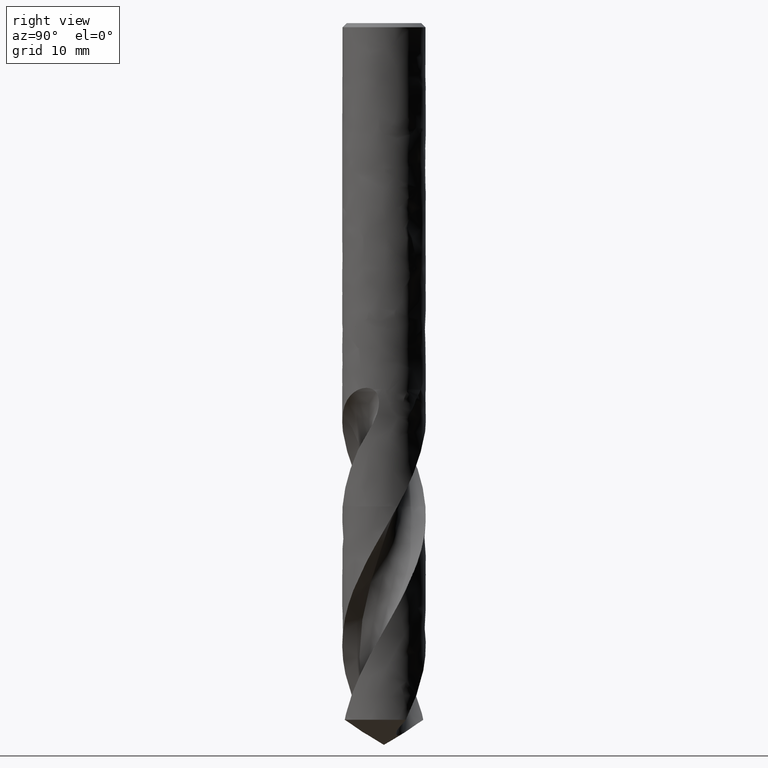
[diagram: clean part render]
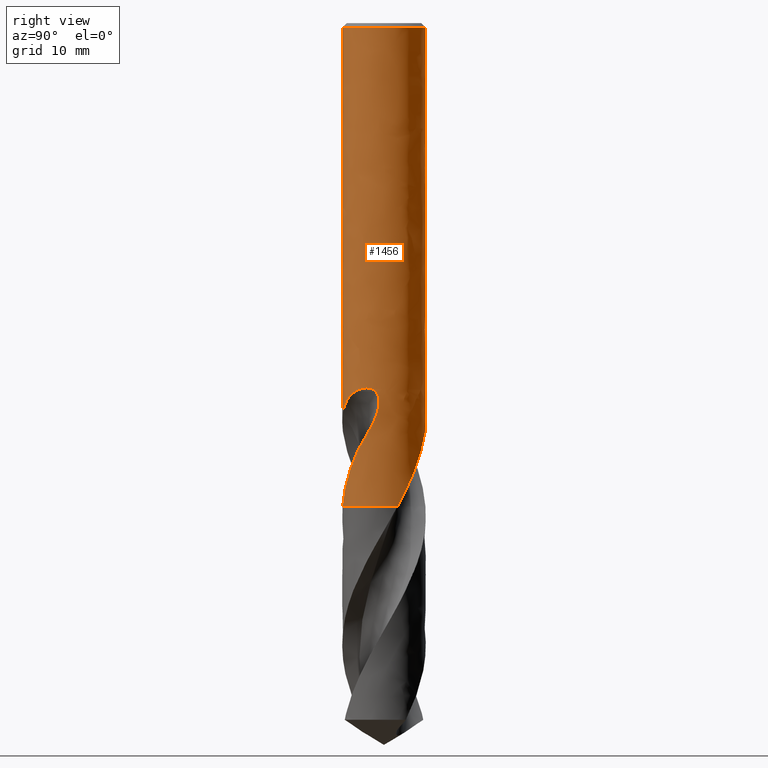
[diagram: same view with one face highlighted and labeled with its STEP entity id]
A machine part, right view. The second image highlights one B-rep face of the part: STEP entity #1456.
In plain terms, the highlighted face is a freeform B-spline surface patch.
Its self-contained STEP definition (entity closure, byte-faithful):
#73 = VERTEX_POINT('', #74);
#74 = CARTESIAN_POINT('', (-5.5, 3.70455656742074E-16, -0.549999999999997));
#90 = EDGE_CURVE('', #73, #73, #91, .T.);
#91 = CIRCLE('', #92, 5.5);
#92 = AXIS2_PLACEMENT_3D('', #93, #94, #95);
#93 = CARTESIAN_POINT('', (2.06216970116004E-33, 3.36777869765519E-17, -0.549999999999997));
#94 = DIRECTION('', (3.74939945665464E-33, 6.12323399573677E-17, -1.));
#95 = DIRECTION('', (-1., 6.12323399573677E-17, 0.));
#129 = VERTEX_POINT('', #130);
#130 = CARTESIAN_POINT('', (-5.20272244532201, -1.78372620010544, -63.6));
#139 = VERTEX_POINT('', #140);
#140 = CARTESIAN_POINT('', (1.00198090854297, -5.40796026787507, -51.2463945700336));
#159 = EDGE_CURVE('', #139, #129, #160, .T.);
#160 = B_SPLINE_CURVE_WITH_KNOTS('', 3, (#161, #162, #163, #164, #165, #166, #167, #168, #169, #170, #171, #172, #173, #174, #175, #176, #177, #178, #179, #180, #181, #182, #183, #184, #185, #186, #187, #188, #189, #190, #191, #192, #193, #194, #195, #196, #197, #198, #199, #200, #201, #202, #203, #204, #205, #206, #207, #208, #209, #210, #211, #212, #213, #214, #215, #216, #217, #218, #219, #220, #221, #222, #223, #224, #225, #226, #227, #228, #229, #230, #231, #232, #233, #234, #235, #236, #237, #238, #239, #240, #241, #242, #243, #244, #245, #246, #247, #248, #249, #250, #251, #252, #253, #254, #255, #256, #257, #258, #259, #260, #261, #262, #263, #264, #265, #266, #267, #268, #269, #270, #271, #272), .UNSPECIFIED., .F., .U., (4, 3, 3, 3, 3, 3, 3, 3, 3, 3, 3, 3, 3, 3, 3, 3, 3, 3, 3, 3, 3, 3, 3, 3, 3, 3, 3, 3, 3, 3, 3, 3, 3, 3, 3, 3, 3, 4), (0., 0.441172133820035, 0.882409715125649, 1.32371539229499, 1.52037725061079, 1.57872949889386, 1.61764330032793, 2.06083589357989, 2.50405512462388, 2.94731125586148, 3.39061467916005, 3.83396612980542, 4.27738057686428, 4.72086406331904, 5.01650411414177, 5.68211732338833, 6.12570169508909, 6.56933707041447, 7.01307453385883, 7.30880969798551, 7.60449509473158, 7.90007609235222, 8.19562132714088, 8.49120091355119, 8.93466082403168, 9.37806179006425, 9.6736280575465, 10.3384618243713, 10.7817416698914, 11.2250236608183, 11.66828774834, 12.1115121923846, 12.5547278442787, 12.9979427678535, 13.2934421574229, 13.9580219166285, 14.4011545046095, 14.6541912505428), .UNSPECIFIED.);
#161 = CARTESIAN_POINT('', (1.00198090854297, -5.40796026787507, -51.2463945700336));
#162 = CARTESIAN_POINT('', (0.908598505675574, -5.42526205639278, -51.358672116121));
#163 = CARTESIAN_POINT('', (0.815303786458073, -5.4400448465403, -51.4714388068249));
#164 = CARTESIAN_POINT('', (0.722264559127474, -5.45236956805281, -51.5846539817086));
#165 = CARTESIAN_POINT('', (0.629211529511957, -5.46469611792656, -51.6978859519608));
#166 = CARTESIAN_POINT('', (0.536386721638777, -5.4745674141418, -51.811599429602));
#167 = CARTESIAN_POINT('', (0.443958055120984, -5.48205264889833, -51.9257624801305));
#168 = CARTESIAN_POINT('', (0.351515124156673, -5.4895390388455, -52.0399431493567));
#169 = CARTESIAN_POINT('', (0.259446080852015, -5.4946405583151, -52.1546082498899));
#170 = CARTESIAN_POINT('', (0.167907470612858, -5.49743640993803, -52.2697248550945));
#171 = CARTESIAN_POINT('', (0.127114536987466, -5.49868234309545, -52.3210250007164));
#172 = CARTESIAN_POINT('', (0.0864227327682549, -5.4994706843899, -52.3724188555182));
#173 = CARTESIAN_POINT('', (0.0458446254599015, -5.49980893034625, -52.423903062038));
#174 = CARTESIAN_POINT('', (0.0338045490933283, -5.4999092925222, -52.4391791263813));
#175 = CARTESIAN_POINT('', (0.0217743604011289, -5.49997003241527, -52.4544633005583));
#176 = CARTESIAN_POINT('', (0.00975438608845284, -5.49999135017065, -52.4697555017202));
#177 = CARTESIAN_POINT('', (0.00173853567293944, -5.50000556650206, -52.4799535265952));
#178 = CARTESIAN_POINT('', (-0.00627279246717232, -5.50000225089929, -52.4901551471472));
#179 = CARTESIAN_POINT('', (-0.0142795015649927, -5.49998146322649, -52.5003603393861));
#180 = CARTESIAN_POINT('', (-0.105468592265618, -5.4997447106534, -52.6165881415115));
#181 = CARTESIAN_POINT('', (-0.196071272815235, -5.49724068892789, -52.7332948623798));
#182 = CARTESIAN_POINT('', (-0.285944764021679, -5.49256184233999, -52.8504497695517));
#183 = CARTESIAN_POINT('', (-0.37582365701372, -5.48788271453318, -52.9676117182403));
#184 = CARTESIAN_POINT('', (-0.464994769268922, -5.48102731503369, -53.0852520118416));
#185 = CARTESIAN_POINT('', (-0.553316932796308, -5.47209652435714, -53.2033471780033));
#186 = CARTESIAN_POINT('', (-0.641646449580742, -5.46316499014809, -53.3214521761718));
#187 = CARTESIAN_POINT('', (-0.729151207357498, -5.45215554247078, -53.4400379072928));
#188 = CARTESIAN_POINT('', (-0.815713420935619, -5.43917379892445, -53.5590720366257));
#189 = CARTESIAN_POINT('', (-0.902284870044157, -5.42619067032473, -53.6781188659957));
#190 = CARTESIAN_POINT('', (-0.98793357401203, -5.41123174079633, -53.7976411821697));
#191 = CARTESIAN_POINT('', (-1.07254271127351, -5.3944093404649, -53.917614619859));
#192 = CARTESIAN_POINT('', (-1.15716101506105, -5.37758511760015, -54.037601055431));
#193 = CARTESIAN_POINT('', (-1.24075501171518, -5.35889397711437, -54.1580670051242));
#194 = CARTESIAN_POINT('', (-1.3232164661446, -5.33845466251469, -54.2789901190612));
#195 = CARTESIAN_POINT('', (-1.40568963763476, -5.31801244366488, -54.3999304151288));
#196 = CARTESIAN_POINT('', (-1.48705166678268, -5.29581645746353, -54.5213497655824));
#197 = CARTESIAN_POINT('', (-1.56721822959599, -5.27198511196905, -54.6432171226502));
#198 = CARTESIAN_POINT('', (-1.64739727430092, -5.24815005594663, -54.7651034544013));
#199 = CARTESIAN_POINT('', (-1.72639662001199, -5.22267421620143, -54.8874617490481));
#200 = CARTESIAN_POINT('', (-1.80413125268733, -5.19568190164472, -55.0102697651172));
#201 = CARTESIAN_POINT('', (-1.85595160554542, -5.17768797517148, -55.0921374540414));
#202 = CARTESIAN_POINT('', (-1.90721507100604, -5.15901850942406, -55.1742139591399));
#203 = CARTESIAN_POINT('', (-1.95789620758965, -5.13971229158852, -55.2564948268889));
#204 = CARTESIAN_POINT('', (-2.07200129543484, -5.09624567204166, -55.4417445327039));
#205 = CARTESIAN_POINT('', (-2.18318558849685, -5.04953658043963, -55.6280831503714));
#206 = CARTESIAN_POINT('', (-2.291207619647, -5.00003676423199, -55.8154538539862));
#207 = CARTESIAN_POINT('', (-2.36319670302444, -4.96704861951559, -55.9403232446225));
#208 = CARTESIAN_POINT('', (-2.43379794880503, -4.93281446400414, -56.0656777496243));
#209 = CARTESIAN_POINT('', (-2.50294978849382, -4.89747305824971, -56.1915030993842));
#210 = CARTESIAN_POINT('', (-2.5721095793069, -4.86212758891705, -56.317342916626));
#211 = CARTESIAN_POINT('', (-2.63983477860746, -4.82566782455231, -56.4436711505321));
#212 = CARTESIAN_POINT('', (-2.70612271866341, -4.78820423870339, -56.5704403392556));
#213 = CARTESIAN_POINT('', (-2.77242591271282, -4.75073203183996, -56.6972386997465));
#214 = CARTESIAN_POINT('', (-2.83730192710242, -4.71224881139684, -56.8244967822912));
#215 = CARTESIAN_POINT('', (-2.90071695773381, -4.67288359914086, -56.9521957173127));
#216 = CARTESIAN_POINT('', (-2.94298080975636, -4.64664809173735, -57.0373024946721));
#217 = CARTESIAN_POINT('', (-2.98459843038294, -4.62001914715576, -57.1226124640539));
#218 = CARTESIAN_POINT('', (-3.02554988029063, -4.59304342695271, -57.2081284734263));
#219 = CARTESIAN_POINT('', (-3.06649443874054, -4.56607224632121, -57.2936300918561));
#220 = CARTESIAN_POINT('', (-3.10677000303348, -4.53875686409295, -57.3793468077808));
#221 = CARTESIAN_POINT('', (-3.14639291938527, -4.51112088031814, -57.4652578379574));
#222 = CARTESIAN_POINT('', (-3.18600184587534, -4.48349465411868, -57.5511385350959));
#223 = CARTESIAN_POINT('', (-3.22496099138177, -4.45554716458529, -57.6372182828167));
#224 = CARTESIAN_POINT('', (-3.26334589163188, -4.42725350432628, -57.7234368295143));
#225 = CARTESIAN_POINT('', (-3.30172614762966, -4.39896326736385, -57.8096449444879));
#226 = CARTESIAN_POINT('', (-3.33953469632544, -4.37032597024612, -57.8959958409608));
#227 = CARTESIAN_POINT('', (-3.37690109380685, -4.34126007083727, -57.9823911329388));
#228 = CARTESIAN_POINT('', (-3.41427183443509, -4.3121907930597, -58.0687964667582));
#229 = CARTESIAN_POINT('', (-3.45120335640979, -4.28269117932466, -58.1552492005707));
#230 = CARTESIAN_POINT('', (-3.48786614510633, -4.25262151546796, -58.24161546782));
#231 = CARTESIAN_POINT('', (-3.54287155732302, -4.20750780987005, -58.3711913211734));
#232 = CARTESIAN_POINT('', (-3.59725941953801, -4.16111382222957, -58.5005914681316));
#233 = CARTESIAN_POINT('', (-3.65089858365431, -4.11350696266227, -58.629847688768));
#234 = CARTESIAN_POINT('', (-3.70453061808234, -4.06590643097262, -58.7590867287384));
#235 = CARTESIAN_POINT('', (-3.75741883389148, -4.01708889798425, -58.8881940784449));
#236 = CARTESIAN_POINT('', (-3.80942999434618, -3.96714546219012, -59.0172112385273));
#237 = CARTESIAN_POINT('', (-3.8441000689303, -3.93385371040393, -59.1032126759801));
#238 = CARTESIAN_POINT('', (-3.87838199568858, -3.90006066486078, -59.1891788689085));
#239 = CARTESIAN_POINT('', (-3.91223750227983, -3.8657984590192, -59.2751236650099));
#240 = CARTESIAN_POINT('', (-3.9883905902711, -3.78873055961571, -59.4684441106002));
#241 = CARTESIAN_POINT('', (-4.06240577196184, -3.70927189394944, -59.6616808273854));
#242 = CARTESIAN_POINT('', (-4.13416768334794, -3.62748639776382, -59.8547427586411));
#243 = CARTESIAN_POINT('', (-4.18201514624889, -3.57295568057705, -59.9834673621935));
#244 = CARTESIAN_POINT('', (-4.22886738085317, -3.5173833053841, -60.1121288875016));
#245 = CARTESIAN_POINT('', (-4.27469622086021, -3.4607762452033, -60.2406915591602));
#246 = CARTESIAN_POINT('', (-4.32052528267186, -3.40416891105295, -60.3692548530426));
#247 = CARTESIAN_POINT('', (-4.36533923724146, -3.3465152840847, -60.4977277054318));
#248 = CARTESIAN_POINT('', (-4.40906909522638, -3.28787312917023, -60.6261099896754));
#249 = CARTESIAN_POINT('', (-4.45279718703675, -3.2292333427126, -60.7544870887771));
#250 = CARTESIAN_POINT('', (-4.49544500202744, -3.16959962693138, -60.8827866080266));
#251 = CARTESIAN_POINT('', (-4.5369367209937, -3.10905213685762, -61.0110203354385));
#252 = CARTESIAN_POINT('', (-4.57842472913371, -3.0485100618696, -61.1392425942225));
#253 = CARTESIAN_POINT('', (-4.61875881510615, -2.98705135587731, -61.267413910751));
#254 = CARTESIAN_POINT('', (-4.65786801455265, -2.9247676076925, -61.395549583152));
#255 = CARTESIAN_POINT('', (-4.69697643819816, -2.86248509501735, -61.5236827137525));
#256 = CARTESIAN_POINT('', (-4.73487030151348, -2.79936203203323, -61.6517865261449));
#257 = CARTESIAN_POINT('', (-4.77150147368416, -2.73546589937251, -61.7798572909551));
#258 = CARTESIAN_POINT('', (-4.80813258566023, -2.67156987170987, -61.9079278453115));
#259 = CARTESIAN_POINT('', (-4.84350426906958, -2.60689424607672, -62.0359782333908));
#260 = CARTESIAN_POINT('', (-4.87755938570039, -2.54153780986356, -62.1640227291163));
#261 = CARTESIAN_POINT('', (-4.90026454665244, -2.49796349415763, -62.2493923056175));
#262 = CARTESIAN_POINT('', (-4.92238459585596, -2.4540868319041, -62.3347657130361));
#263 = CARTESIAN_POINT('', (-4.94390536113356, -2.40993771292014, -62.4201467523242));
#264 = CARTESIAN_POINT('', (-4.9923056811036, -2.31064610048653, -62.6121691812485));
#265 = CARTESIAN_POINT('', (-5.03768835725836, -2.20994903622456, -62.8042541981309));
#266 = CARTESIAN_POINT('', (-5.07998567794894, -2.10801933383773, -62.9963356936389));
#267 = CARTESIAN_POINT('', (-5.10818894613858, -2.04005401863642, -63.1244129771082));
#268 = CARTESIAN_POINT('', (-5.13502469824926, -1.97153122966854, -63.252504074868));
#269 = CARTESIAN_POINT('', (-5.16047665747808, -1.90249327663039, -63.3805839630612));
#270 = CARTESIAN_POINT('', (-5.17501018788312, -1.86307135313282, -63.4537199025225));
#271 = CARTESIAN_POINT('', (-5.18909496277964, -1.82347445815771, -63.52686625334));
#272 = CARTESIAN_POINT('', (-5.20272244532201, -1.78372620010544, -63.6));
#311 = VERTEX_POINT('', #312);
#312 = CARTESIAN_POINT('', (0.714456293765341, -5.45339822535445, -63.6));
#385 = EDGE_CURVE('', #386, #311, #388, .T.);
#386 = VERTEX_POINT('', #387);
#387 = CARTESIAN_POINT('', (3.26968593350629, -4.42257322112716, -58.6984018721668));
#388 = B_SPLINE_CURVE_WITH_KNOTS('', 3, (#389, #390, #391, #392, #393, #394, #395, #396, #397, #398, #399, #400, #401, #402, #403, #404, #405, #406, #407, #408, #409, #410, #411, #412, #413, #414, #415, #416, #417, #418, #419, #420, #421, #422, #423, #424, #425, #426, #427, #428), .UNSPECIFIED., .F., .U., (4, 3, 3, 3, 3, 3, 3, 3, 3, 3, 3, 3, 3, 4), (0., 0.443317857167582, 0.738840661161417, 1.40347792133523, 1.84666160747555, 2.28983893802883, 2.73298901117867, 3.02845590968989, 3.47155646753723, 3.91465925584381, 4.21010987210681, 4.87443788406549, 5.31745490321451, 5.63758894589785), .UNSPECIFIED.);
#389 = CARTESIAN_POINT('', (3.2696859335063, -4.42257322112715, -58.6984018721668));
#390 = CARTESIAN_POINT('', (3.21297887948116, -4.46449774054287, -58.8282609944424));
#391 = CARTESIAN_POINT('', (3.15513228414397, -4.50557525465096, -58.9579036059473));
#392 = CARTESIAN_POINT('', (3.0962944852117, -4.54565291909182, -59.0873973941087));
#393 = CARTESIAN_POINT('', (3.05707226341269, -4.57236933392058, -59.173720033178));
#394 = CARTESIAN_POINT('', (3.01741126853386, -4.59864107780535, -59.2599832005708));
#395 = CARTESIAN_POINT('', (2.9773468083574, -4.62443574750087, -59.3461993334353));
#396 = CARTESIAN_POINT('', (2.88724095973199, -4.68244852472763, -59.5401013049767));
#397 = CARTESIAN_POINT('', (2.79505652395099, -4.73807475248177, -59.7337785171634));
#398 = CARTESIAN_POINT('', (2.70085702004125, -4.7911764064052, -59.9271413591457));
#399 = CARTESIAN_POINT('', (2.63804428612322, -4.82658487375441, -60.0560767381972));
#400 = CARTESIAN_POINT('', (2.57432631663658, -4.8608762020052, -60.1848863160772));
#401 = CARTESIAN_POINT('', (2.50970895255338, -4.89401276801294, -60.3135334898728));
#402 = CARTESIAN_POINT('', (2.44509251513173, -4.92714885881743, -60.4421788187712));
#403 = CARTESIAN_POINT('', (2.37957461866043, -4.95912991058116, -60.5706773707301));
#404 = CARTESIAN_POINT('', (2.31324698963694, -4.98987859220401, -60.6990443032043));
#405 = CARTESIAN_POINT('', (2.24692344006161, -5.02062538264433, -60.8274033405335));
#406 = CARTESIAN_POINT('', (2.17978357721891, -5.0501428334012, -60.9556436187666));
#407 = CARTESIAN_POINT('', (2.11193815760748, -5.07835772848286, -61.0837886130037));
#408 = CARTESIAN_POINT('', (2.06670274656874, -5.09716979249165, -61.1692283010485));
#409 = CARTESIAN_POINT('', (2.02115196427779, -5.1154038118853, -61.2546308384422));
#410 = CARTESIAN_POINT('', (1.9753221038498, -5.13304028681271, -61.3400044590906));
#411 = CARTESIAN_POINT('', (1.90659279161879, -5.1594890427247, -61.4680360562858));
#412 = CARTESIAN_POINT('', (1.83722344849559, -5.18459844894434, -61.5960094145514));
#413 = CARTESIAN_POINT('', (1.76730748858407, -5.20832259377188, -61.7239323148908));
#414 = CARTESIAN_POINT('', (1.69739117673279, -5.23204685802093, -61.8518558591627));
#415 = CARTESIAN_POINT('', (1.62692108313725, -5.25438781455223, -61.979741946621));
#416 = CARTESIAN_POINT('', (1.55602527386245, -5.27529955046168, -62.1076170735404));
#417 = CARTESIAN_POINT('', (1.50875359989995, -5.28924300878473, -62.1928812290593));
#418 = CARTESIAN_POINT('', (1.46129150016214, -5.30255165473636, -62.2781461935563));
#419 = CARTESIAN_POINT('', (1.41368305783166, -5.31521403256724, -62.3634228481114));
#420 = CARTESIAN_POINT('', (1.30663429873311, -5.34368570203761, -62.5551695132686));
#421 = CARTESIAN_POINT('', (1.19881517039771, -5.36889917547295, -62.746998916276));
#422 = CARTESIAN_POINT('', (1.0903936142929, -5.39082941354196, -62.9388339683805));
#423 = CARTESIAN_POINT('', (1.01809108642654, -5.40545391909294, -63.0667620271433));
#424 = CARTESIAN_POINT('', (0.945510593224317, -5.41862061771148, -63.1947082377305));
#425 = CARTESIAN_POINT('', (0.872690757580928, -5.43032327229538, -63.3226435312576));
#426 = CARTESIAN_POINT('', (0.820069509718185, -5.43877987319361, -63.4150924461941));
#427 = CARTESIAN_POINT('', (0.767309871499141, -5.44647381424426, -63.5075561600223));
#428 = CARTESIAN_POINT('', (0.714456293765341, -5.45339822535445, -63.6));
#431 = VERTEX_POINT('', #432);
#432 = CARTESIAN_POINT('', (4.30389661225973, -3.42439395382296, -56.1760126312081));
#442 = EDGE_CURVE('', #443, #431, #445, .T.);
#443 = VERTEX_POINT('', #444);
#444 = CARTESIAN_POINT('', (4.98766822671617, -2.31800898622199, -48.));
#445 = B_SPLINE_CURVE_WITH_KNOTS('', 3, (#446, #447, #448, #449, #450, #451, #452, #453, #454, #455, #456, #457, #458, #459, #460, #461, #462, #463, #464, #465, #466, #467, #468, #469, #470, #471, #472, #473, #474, #475, #476, #477, #478, #479, #480, #481, #482, #483, #484, #485, #486, #487, #488, #489, #490, #491, #492, #493, #494, #495, #496, #497, #498, #499, #500, #501, #502, #503, #504, #505, #506, #507, #508, #509, #510, #511, #512, #513, #514, #515, #516, #517, #518, #519, #520, #521, #522, #523, #524, #525, #526, #527, #528, #529, #530, #531, #532, #533, #534, #535, #536, #537, #538, #539, #540, #541, #542, #543, #544, #545, #546, #547, #548, #549, #550, #551, #552, #553, #554, #555, #556, #557, #558, #559, #560, #561, #562, #563, #564, #565, #566, #567, #568, #569, #570, #571, #572, #573, #574, #575), .UNSPECIFIED., .F., .U., (4, 3, 3, 3, 3, 3, 3, 3, 3, 3, 3, 3, 3, 3, 3, 3, 3, 3, 3, 3, 3, 3, 3, 3, 3, 3, 3, 3, 3, 3, 3, 3, 3, 3, 3, 3, 3, 3, 3, 3, 3, 3, 3, 4), (0., 0.196813349378647, 0.393319037534787, 0.589478023454175, 0.785272288722808, 0.915871589592016, 1.04638235164352, 1.17682975977045, 1.30724577177092, 1.43766557714755, 1.56812312998406, 1.69864707418926, 1.82925817473226, 1.95996864291906, 2.15585770533576, 2.35207119046643, 2.41039916528032, 2.46873767087495, 2.66547455691193, 2.86239802480601, 3.05947599986843, 3.25667882376269, 3.55287490736679, 3.84930506904475, 4.14589167265463, 4.44257657828835, 4.73931774261132, 5.03608098437221, 5.33283837744836, 5.62957272926535, 5.92626973591521, 6.22291603872824, 6.51950012561381, 6.81601701481218, 7.11246205677143, 7.40883080335869, 7.70511993769399, 8.00133407382943, 8.2974750336451, 8.59354385564514, 8.88954157143528, 9.185465023861, 9.4813192495289, 9.98649193661747), .UNSPECIFIED.);
#446 = CARTESIAN_POINT('', (4.98766822672349, -2.31800898620626, -48.));
#447 = CARTESIAN_POINT('', (5.01531761577792, -2.25851569688093, -48.0000603555823));
#448 = CARTESIAN_POINT('', (5.04192878984829, -2.19846028185344, -48.0026734857192));
#449 = CARTESIAN_POINT('', (5.0673435112908, -2.13823051577209, -48.0081881066864));
#450 = CARTESIAN_POINT('', (5.09271850410569, -2.07809490165513, -48.0136941071254));
#451 = CARTESIAN_POINT('', (5.11695816296256, -2.01764556994608, -48.0221088416219));
#452 = CARTESIAN_POINT('', (5.13989734438846, -1.9574103527744, -48.0337712150598));
#453 = CARTESIAN_POINT('', (5.16279605337012, -1.89728141081908, -48.0454130121418));
#454 = CARTESIAN_POINT('', (5.1844626572334, -1.83719390543934, -48.0603300812242));
#455 = CARTESIAN_POINT('', (5.20473823275629, -1.77783574283028, -48.0787930588249));
#456 = CARTESIAN_POINT('', (5.22497610966922, -1.71858794553329, -48.0972217079997));
#457 = CARTESIAN_POINT('', (5.24389650648687, -1.65986312475615, -48.1192547780854));
#458 = CARTESIAN_POINT('', (5.26136897434615, -1.60249696280141, -48.1450098666387));
#459 = CARTESIAN_POINT('', (5.27302351429781, -1.56423240671465, -48.1621891060525));
#460 = CARTESIAN_POINT('', (5.28406135553872, -1.52648911467947, -48.1810581479858));
#461 = CARTESIAN_POINT('', (5.29445704325737, -1.48953839061055, -48.2015935926724));
#462 = CARTESIAN_POINT('', (5.3048456832974, -1.45261271700822, -48.2221151155081));
#463 = CARTESIAN_POINT('', (5.31461355277586, -1.41640615644454, -48.2443422042108));
#464 = CARTESIAN_POINT('', (5.3237498830556, -1.38119049470579, -48.2681948088837));
#465 = CARTESIAN_POINT('', (5.33288177828056, -1.34599192772875, -48.2920358347712));
#466 = CARTESIAN_POINT('', (5.34140188528457, -1.31171066679055, -48.3175508088867));
#467 = CARTESIAN_POINT('', (5.3493161149386, -1.27859966465607, -48.3446017173675));
#468 = CARTESIAN_POINT('', (5.35722843979314, -1.24549663168882, -48.3716461152265));
#469 = CARTESIAN_POINT('', (5.36455224914023, -1.21349353579079, -48.4002828760602));
#470 = CARTESIAN_POINT('', (5.37130990857079, -1.18280592917436, -48.4303231818337));
#471 = CARTESIAN_POINT('', (5.3780677645596, -1.15211742995561, -48.4603643613817));
#472 = CARTESIAN_POINT('', (5.38427395080222, -1.12268052416054, -48.491871186722));
#473 = CARTESIAN_POINT('', (5.38996470923729, -1.09465996235255, -48.524618529437));
#474 = CARTESIAN_POINT('', (5.395657114751, -1.06663129054142, -48.5573753502294));
#475 = CARTESIAN_POINT('', (5.400845544894, -1.03996380048612, -48.5914374789282));
#476 = CARTESIAN_POINT('', (5.40557582702784, -1.01476597216001, -48.6265617313905));
#477 = CARTESIAN_POINT('', (5.41030851645736, -0.989555320365472, -48.6617038589942));
#478 = CARTESIAN_POINT('', (5.41459166520575, -0.9657690196615, -48.6979725194482));
#479 = CARTESIAN_POINT('', (5.4184757918176, -0.943461760480195, -48.7351241572847));
#480 = CARTESIAN_POINT('', (5.42236251202447, -0.921139605801911, -48.7723006028353));
#481 = CARTESIAN_POINT('', (5.42585638284543, -0.900260971702178, -48.8104214309284));
#482 = CARTESIAN_POINT('', (5.42900817869192, -0.880834942368959, -48.8492565806579));
#483 = CARTESIAN_POINT('', (5.43216237239377, -0.861394133903222, -48.8881212757883));
#484 = CARTESIAN_POINT('', (5.43497873643208, -0.843379252495395, -48.9277568496976));
#485 = CARTESIAN_POINT('', (5.43750497188384, -0.826764586046245, -48.9679554752029));
#486 = CARTESIAN_POINT('', (5.44129091115064, -0.801865039145083, -49.0281990897344));
#487 = CARTESIAN_POINT('', (5.44443510478291, -0.780057947948136, -49.0898379743699));
#488 = CARTESIAN_POINT('', (5.44707552296234, -0.761162431511487, -49.1522847638332));
#489 = CARTESIAN_POINT('', (5.44972031408441, -0.742235621164657, -49.2148349748793));
#490 = CARTESIAN_POINT('', (5.45186572306683, -0.726183948214075, -49.2783343396484));
#491 = CARTESIAN_POINT('', (5.45361879454307, -0.712770681079536, -49.3423246434224));
#492 = CARTESIAN_POINT('', (5.45413992645632, -0.708783347043478, -49.3613469079949));
#493 = CARTESIAN_POINT('', (5.45462639254378, -0.705027370400166, -49.380420016623));
#494 = CARTESIAN_POINT('', (5.45508048144452, -0.701496215929172, -49.3995339307179));
#495 = CARTESIAN_POINT('', (5.45553465232841, -0.697964423928525, -49.4186512957202));
#496 = CARTESIAN_POINT('', (5.45595649781779, -0.69465703236237, -49.4378121796365));
#497 = CARTESIAN_POINT('', (5.45634808496372, -0.691567477338751, -49.4570073555883));
#498 = CARTESIAN_POINT('', (5.45766864734215, -0.681148468000215, -49.5217398869618));
#499 = CARTESIAN_POINT('', (5.45864798933972, -0.673197923765783, -49.5869151821652));
#500 = CARTESIAN_POINT('', (5.45934846833509, -0.667468577003654, -49.6522396352702));
#501 = CARTESIAN_POINT('', (5.46004961165262, -0.661733796628234, -49.7176260409558));
#502 = CARTESIAN_POINT('', (5.4604718683889, -0.658216795879932, -49.7832403019902));
#503 = CARTESIAN_POINT('', (5.46065590508146, -0.656686444430616, -49.8488633582381));
#504 = CARTESIAN_POINT('', (5.46084008617016, -0.655154892259661, -49.9145379026744));
#505 = CARTESIAN_POINT('', (5.46078555153449, -0.655611337599086, -49.9802837831214));
#506 = CARTESIAN_POINT('', (5.46051634408432, -0.657845921160884, -50.0459378730571));
#507 = CARTESIAN_POINT('', (5.46024696609131, -0.660081920330629, -50.1116335548371));
#508 = CARTESIAN_POINT('', (5.45976223620589, -0.664099611353113, -50.17728745238));
#509 = CARTESIAN_POINT('', (5.45907375123899, -0.669711713005183, -50.2427781018257));
#510 = CARTESIAN_POINT('', (5.45803965574892, -0.678141016892953, -50.3411442078248));
#511 = CARTESIAN_POINT('', (5.4565458756334, -0.69017304924843, -50.4392464836001));
#512 = CARTESIAN_POINT('', (5.45459385387985, -0.705270082462125, -50.5367979188851));
#513 = CARTESIAN_POINT('', (5.45264028948101, -0.720379046571101, -50.634426447195));
#514 = CARTESIAN_POINT('', (5.45022476857963, -0.738574692237408, -50.7316066554979));
#515 = CARTESIAN_POINT('', (5.44731992947395, -0.759411341735077, -50.828151063403));
#516 = CARTESIAN_POINT('', (5.44441355733048, -0.780258987838772, -50.9247464229171));
#517 = CARTESIAN_POINT('', (5.44101440442663, -0.803768021324674, -51.0207831781062));
#518 = CARTESIAN_POINT('', (5.43707899788044, -0.82956131226533, -51.1161401576332));
#519 = CARTESIAN_POINT('', (5.43314228696507, -0.855363152252606, -51.2115287427148));
#520 = CARTESIAN_POINT('', (5.42866620562666, -0.883467049388635, -51.306297142658));
#521 = CARTESIAN_POINT('', (5.42359864718877, -0.913552250400654, -51.4003684737583));
#522 = CARTESIAN_POINT('', (5.41853012781829, -0.943643156300056, -51.4944576430757));
#523 = CARTESIAN_POINT('', (5.41286711275432, -0.975731752602277, -51.587896287238));
#524 = CARTESIAN_POINT('', (5.4065543055453, -1.00953976701742, -51.68063835383));
#525 = CARTESIAN_POINT('', (5.40024102866566, -1.0433502967369, -51.773387320399));
#526 = CARTESIAN_POINT('', (5.39327512231328, -1.07889457824181, -51.8654768205996));
#527 = CARTESIAN_POINT('', (5.38560241771511, -1.11592410060101, -51.9568842834376));
#528 = CARTESIAN_POINT('', (5.37792986433252, -1.15295289317305, -52.0482899447944));
#529 = CARTESIAN_POINT('', (5.36954806896283, -1.19147848376645, -52.1390439879805));
#530 = CARTESIAN_POINT('', (5.3604065521831, -1.23127640898093, -52.2291414480024));
#531 = CARTESIAN_POINT('', (5.351265745182, -1.27107124414834, -52.3192319125494));
#532 = CARTESIAN_POINT('', (5.34136264205164, -1.31214990049282, -52.4086901548644));
#533 = CARTESIAN_POINT('', (5.33065132013189, -1.35431034226885, -52.4975228053534));
#534 = CARTESIAN_POINT('', (5.31994134627348, -1.39646547799003, -52.5863442759093));
#535 = CARTESIAN_POINT('', (5.30842081055702, -1.43971203236194, -52.6745605481974));
#536 = CARTESIAN_POINT('', (5.29605075148562, -1.48386200089116, -52.7621891654231));
#537 = CARTESIAN_POINT('', (5.2836828063872, -1.52800442444098, -52.8498028074147));
#538 = CARTESIAN_POINT('', (5.27046313478672, -1.57305870752784, -52.9368459170397));
#539 = CARTESIAN_POINT('', (5.25636156035939, -1.61884623938661, -53.0233463066967));
#540 = CARTESIAN_POINT('', (5.24226294346945, -1.66462416818026, -53.1098285545399));
#541 = CARTESIAN_POINT('', (5.22728072616109, -1.71114173024593, -53.1957832127665));
#542 = CARTESIAN_POINT('', (5.21139360745267, -1.75823111910847, -53.2812452386643));
#543 = CARTESIAN_POINT('', (5.19551008832251, -1.80530983882805, -53.3666879012492));
#544 = CARTESIAN_POINT('', (5.17871963839108, -1.85296737019656, -53.4516501067209));
#545 = CARTESIAN_POINT('', (5.1610100505162, -1.90104583281696, -53.53617213077));
#546 = CARTESIAN_POINT('', (5.14330475374594, -1.94911264583181, -53.6206736747914));
#547 = CARTESIAN_POINT('', (5.12467848487865, -1.99760630877195, -53.7047457478779));
#548 = CARTESIAN_POINT('', (5.10512971602611, -2.04637498580958, -53.7884348676336));
#549 = CARTESIAN_POINT('', (5.08558597839481, -2.09513111136606, -53.872102448515));
#550 = CARTESIAN_POINT('', (5.06511798754287, -2.14416756643378, -53.9553964371361));
#551 = CARTESIAN_POINT('', (5.04373615308984, -2.19333664037568, -54.0383699321422));
#552 = CARTESIAN_POINT('', (5.02236006234633, -2.24249250624234, -54.1213211383379));
#553 = CARTESIAN_POINT('', (5.00006913416117, -2.29178437786351, -54.2039611690929));
#554 = CARTESIAN_POINT('', (4.97688399181681, -2.34107362805991, -54.286345378766));
#555 = CARTESIAN_POINT('', (4.9537047182126, -2.39035040191273, -54.3687087349324));
#556 = CARTESIAN_POINT('', (4.92962921620429, -2.43962981590818, -54.4508231114058));
#557 = CARTESIAN_POINT('', (4.9046886123803, -2.4887807487979, -54.5327459634199));
#558 = CARTESIAN_POINT('', (4.87975416984769, -2.53791953951091, -54.6146485773289));
#559 = CARTESIAN_POINT('', (4.8539529361621, -2.58693399892058, -54.6963664677733));
#560 = CARTESIAN_POINT('', (4.8273288702875, -2.63569648823399, -54.777961590756));
#561 = CARTESIAN_POINT('', (4.80071128984455, -2.68444709935445, -54.8595368377513));
#562 = CARTESIAN_POINT('', (4.77326914550324, -2.73294966499898, -54.9409956919059));
#563 = CARTESIAN_POINT('', (4.74506032540738, -2.78107937827118, -55.0224047317279));
#564 = CARTESIAN_POINT('', (4.71685828016295, -2.82919753233404, -55.1037942197166));
#565 = CARTESIAN_POINT('', (4.68788810907416, -2.87694605057344, -55.1851404871137));
#566 = CARTESIAN_POINT('', (4.65822138420258, -2.92420476980643, -55.2665128396254));
#567 = CARTESIAN_POINT('', (4.62856210246547, -2.97145163221991, -55.3478647764909));
#568 = CARTESIAN_POINT('', (4.5982042574281, -3.01821278115105, -55.4292486494558));
#569 = CARTESIAN_POINT('', (4.56722905077042, -3.06437902319544, -55.5107304959055));
#570 = CARTESIAN_POINT('', (4.53626109028775, -3.11053446535483, -55.5921932809256));
#571 = CARTESIAN_POINT('', (4.50467373758973, -3.15609878775706, -55.6737602913902));
#572 = CARTESIAN_POINT('', (4.47255815985676, -3.20097227521593, -55.7554945225958));
#573 = CARTESIAN_POINT('', (4.4177206375461, -3.27759399723953, -55.8950561635088));
#574 = CARTESIAN_POINT('', (4.36132913454786, -3.3522107758818, -56.0351347125718));
#575 = CARTESIAN_POINT('', (4.30389661225973, -3.42439395382296, -56.1760126312081));
#577 = EDGE_CURVE('', #443, #578, #580, .T.);
#578 = VERTEX_POINT('', #579);
#579 = CARTESIAN_POINT('', (4.98570207796183, -2.32223486964757, -48.));
#580 = LINE('', #581, #582);
#581 = CARTESIAN_POINT('', (4.98766822671618, -2.31800898622199, -48.));
#582 = VECTOR('', #583, 0.00466088314065514);
#583 = DIRECTION('', (-0.00196614875434697, -0.00422588342558372, 0.));
#585 = EDGE_CURVE('', #578, #139, #586, .T.);
#586 = B_SPLINE_CURVE_WITH_KNOTS('', 3, (#587, #588, #589, #590, #591, #592, #593, #594, #595, #596, #597, #598, #599, #600, #601, #602, #603, #604, #605, #606, #607, #608, #609, #610, #611, #612, #613, #614, #615, #616, #617, #618, #619, #620, #621, #622, #623, #624, #625, #626, #627, #628, #629, #630, #631, #632, #633, #634, #635, #636, #637, #638, #639, #640, #641, #642, #643, #644, #645, #646, #647), .UNSPECIFIED., .F., .U., (4, 3, 3, 3, 3, 3, 3, 3, 3, 3, 3, 3, 3, 3, 3, 3, 3, 3, 3, 3, 4), (0., 0.197560279247812, 0.394795638394897, 0.591768598155946, 0.788531769716223, 0.985127895142678, 1.18159111785242, 1.47563840284195, 1.76941008022907, 2.06298594293451, 2.35642333828367, 2.64976425515665, 2.94304007796123, 3.23627479085745, 3.67436075193501, 4.11243112866399, 4.55054433578865, 4.98875012194522, 5.42710746772794, 5.86565701531409, 6.31760056306195), .UNSPECIFIED.);
#587 = CARTESIAN_POINT('', (4.98570207795987, -2.32223486965178, -48.));
#588 = CARTESIAN_POINT('', (4.95789715822759, -2.38193040170083, -48.0000605209291));
#589 = CARTESIAN_POINT('', (4.92899764155768, -2.44116679841367, -48.0026831521528));
#590 = CARTESIAN_POINT('', (4.89914975991691, -2.49966630371057, -48.0075396542166));
#591 = CARTESIAN_POINT('', (4.8693509679856, -2.55806959702992, -48.0123881689706));
#592 = CARTESIAN_POINT('', (4.83856280897021, -2.61582700550876, -48.0194696413332));
#593 = CARTESIAN_POINT('', (4.80691616708254, -2.67274334021066, -48.028494145074));
#594 = CARTESIAN_POINT('', (4.77531162748038, -2.72958395415262, -48.037506642731));
#595 = CARTESIAN_POINT('', (4.74281264734294, -2.78565591089337, -48.0484677362472));
#596 = CARTESIAN_POINT('', (4.70953596367, -2.84082224134121, -48.0611273468033));
#597 = CARTESIAN_POINT('', (4.67629472169222, -2.89592981628666, -48.0737734741029));
#598 = CARTESIAN_POINT('', (4.6422440703713, -2.9501899225062, -48.0881272752831));
#599 = CARTESIAN_POINT('', (4.60748846321927, -3.00350629453332, -48.1039753592566));
#600 = CARTESIAN_POINT('', (4.57276236255343, -3.05677740253189, -48.1198099886739));
#601 = CARTESIAN_POINT('', (4.53730314182484, -3.10915202446277, -48.1371499277827));
#602 = CARTESIAN_POINT('', (4.50120487212861, -3.16056240234723, -48.1558137021691));
#603 = CARTESIAN_POINT('', (4.46513100554867, -3.21193802583929, -48.1744648594894));
#604 = CARTESIAN_POINT('', (4.42839286969635, -3.26238825801154, -48.1944517429142));
#605 = CARTESIAN_POINT('', (4.39107584952897, -3.31186546883883, -48.2156198751698));
#606 = CARTESIAN_POINT('', (4.3352233173717, -3.38591820660804, -48.2473023027112));
#607 = CARTESIAN_POINT('', (4.27801089486443, -3.457873520308, -48.2816640474449));
#608 = CARTESIAN_POINT('', (4.21969579245864, -3.52762914988336, -48.3182781227216));
#609 = CARTESIAN_POINT('', (4.16143534821969, -3.59731939819929, -48.3548578799887));
#610 = CARTESIAN_POINT('', (4.10200622759192, -3.66489665218262, -48.3937295770039));
#611 = CARTESIAN_POINT('', (4.04163717135484, -3.73030413976164, -48.4345526872802));
#612 = CARTESIAN_POINT('', (3.98130835435265, -3.79566802971928, -48.4753485867497));
#613 = CARTESIAN_POINT('', (3.91998128848963, -3.85893025311915, -48.5181344015251));
#614 = CARTESIAN_POINT('', (3.85786251215745, -3.92006337159109, -48.5626350659886));
#615 = CARTESIAN_POINT('', (3.79577303463293, -3.98116765614863, -48.607114741365));
#616 = CARTESIAN_POINT('', (3.73283975259686, -4.04019725100689, -48.6533461070554));
#617 = CARTESIAN_POINT('', (3.66925156392185, -4.09714448862338, -48.7011041715161));
#618 = CARTESIAN_POINT('', (3.60568428223295, -4.15407300271385, -48.7488465337337));
#619 = CARTESIAN_POINT('', (3.54141513787241, -4.20896321952947, -48.7981506207756));
#620 = CARTESIAN_POINT('', (3.47661876042378, -4.26182144096504, -48.8488302622916));
#621 = CARTESIAN_POINT('', (3.411836761671, -4.31466793285154, -48.8994986576981));
#622 = CARTESIAN_POINT('', (3.34648489981166, -4.36551846116054, -48.951575842843));
#623 = CARTESIAN_POINT('', (3.2807260828362, -4.41438969387638, -49.0049061903294));
#624 = CARTESIAN_POINT('', (3.21497648359615, -4.46325407607219, -49.0582290622397));
#625 = CARTESIAN_POINT('', (3.14878100344787, -4.51016883985112, -49.1128366395429));
#626 = CARTESIAN_POINT('', (3.08229280086811, -4.55515873375658, -49.1685976893936));
#627 = CARTESIAN_POINT('', (2.98296094537329, -4.62237260729729, -49.2519034238113));
#628 = CARTESIAN_POINT('', (2.8828791555547, -4.6853540986285, -49.3378631614839));
#629 = CARTESIAN_POINT('', (2.7825251571818, -4.74421265856099, -49.4261191110425));
#630 = CARTESIAN_POINT('', (2.68217472877422, -4.80306912467538, -49.5143719210084));
#631 = CARTESIAN_POINT('', (2.58144630921651, -4.85786531433022, -49.6050146047598));
#632 = CARTESIAN_POINT('', (2.48078594567748, -4.90873721966546, -49.6977636802899));
#633 = CARTESIAN_POINT('', (2.38011574051614, -4.95961409877649, -49.7905218239511));
#634 = CARTESIAN_POINT('', (2.27941939932682, -5.00661369676287, -49.8854740311067));
#635 = CARTESIAN_POINT('', (2.17911875690555, -5.04989519131856, -49.9823941714785));
#636 = CARTESIAN_POINT('', (2.07879691965101, -5.09318583181828, -50.0793347923394));
#637 = CARTESIAN_POINT('', (1.9787897000263, -5.13279234516564, -50.1783291312693));
#638 = CARTESIAN_POINT('', (1.87948194496861, -5.16890197416598, -50.2791760401795));
#639 = CARTESIAN_POINT('', (1.78013984292897, -5.20502409218871, -50.3800578284098));
#640 = CARTESIAN_POINT('', (1.68142164928297, -5.23767478074619, -50.4828695682326));
#641 = CARTESIAN_POINT('', (1.58368588251121, -5.26706170701793, -50.5874397566348));
#642 = CARTESIAN_POINT('', (1.48590726259505, -5.29646151825734, -50.6920557947963));
#643 = CARTESIAN_POINT('', (1.38904441321293, -5.32261516040986, -50.7985043810828));
#644 = CARTESIAN_POINT('', (1.29343390684838, -5.34574865931974, -50.9066385345919));
#645 = CARTESIAN_POINT('', (1.1949033036675, -5.36958869205194, -51.0180752770047));
#646 = CARTESIAN_POINT('', (1.09764328432287, -5.390236048493, -51.1313757177055));
#647 = CARTESIAN_POINT('', (1.00198090854297, -5.40796026787506, -51.2463945700336));
#744 = EDGE_CURVE('', #431, #386, #745, .T.);
#745 = B_SPLINE_CURVE_WITH_KNOTS('', 3, (#746, #747, #748, #749, #750, #751, #752, #753, #754, #755, #756, #757, #758, #759, #760, #761, #762, #763, #764, #765, #766, #767, #768, #769, #770, #771, #772, #773), .UNSPECIFIED., .F., .U., (4, 3, 3, 3, 3, 3, 3, 3, 3, 4), (0., 0.443468433087536, 0.887076259672197, 1.18276342635238, 1.3798468041809, 1.57689421309548, 1.87241386452431, 2.16791318118928, 2.36494971427094, 2.90643033652739), .UNSPECIFIED.);
#746 = CARTESIAN_POINT('', (4.30389661225973, -3.42439395382296, -56.1760126312081));
#747 = CARTESIAN_POINT('', (4.25347917814592, -3.48776032661981, -56.2996830342822));
#748 = CARTESIAN_POINT('', (4.2024459624595, -3.54902710569111, -56.4241992429976));
#749 = CARTESIAN_POINT('', (4.15101740004618, -3.60819269780784, -56.5495232994997));
#750 = CARTESIAN_POINT('', (4.09957267231728, -3.66737688718693, -56.6748867485656));
#751 = CARTESIAN_POINT('', (4.04771844890994, -3.72447358421294, -56.8010882220117));
#752 = CARTESIAN_POINT('', (3.99571012010194, -3.77945771720163, -56.9281205072754));
#753 = CARTESIAN_POINT('', (3.96104392517159, -3.81610743688976, -57.0127939829346));
#754 = CARTESIAN_POINT('', (3.92630540506047, -3.85182295362076, -57.0978484049171));
#755 = CARTESIAN_POINT('', (3.89158438365898, -3.88658860504456, -57.1832904593065));
#756 = CARTESIAN_POINT('', (3.86844189744191, -3.90976083836107, -57.2402398659268));
#757 = CARTESIAN_POINT('', (3.84530991792948, -3.93250882465203, -57.2973677970886));
#758 = CARTESIAN_POINT('', (3.8221875347723, -3.95485555349766, -57.3546542796707));
#759 = CARTESIAN_POINT('', (3.79906937159053, -3.97719820392948, -57.4119303071215));
#760 = CARTESIAN_POINT('', (3.77595956277012, -3.99914108508166, -57.4693669614832));
#761 = CARTESIAN_POINT('', (3.75284161500023, -4.02071881791334, -57.5269356053314));
#762 = CARTESIAN_POINT('', (3.71817073095086, -4.05307978180607, -57.6132735361724));
#763 = CARTESIAN_POINT('', (3.68348339884997, -4.08461948141663, -57.6999154170782));
#764 = CARTESIAN_POINT('', (3.64865652291187, -4.11549578760721, -57.7867329436219));
#765 = CARTESIAN_POINT('', (3.61383204341777, -4.14636996919324, -57.8735444962348));
#766 = CARTESIAN_POINT('', (3.57886609543429, -4.17658347425866, -57.9605359965882));
#767 = CARTESIAN_POINT('', (3.54355271777677, -4.20633262312158, -58.0475426551154));
#768 = CARTESIAN_POINT('', (3.52000604571143, -4.22616911283071, -58.1055579850481));
#769 = CARTESIAN_POINT('', (3.4963026348671, -4.24580037809939, -58.1635805076025));
#770 = CARTESIAN_POINT('', (3.47236262113478, -4.2652898878442, -58.2215524434762));
#771 = CARTESIAN_POINT('', (3.40657251952334, -4.31884945722476, -58.380866451997));
#772 = CARTESIAN_POINT('', (3.33894948877123, -4.3713654601629, -58.5397883690142));
#773 = CARTESIAN_POINT('', (3.26968593350629, -4.42257322112716, -58.6984018721668));
#797 = VERTEX_POINT('', #798);
#798 = CARTESIAN_POINT('', (-0.714456293765341, 5.45339822535446, -63.6));
#871 = EDGE_CURVE('', #872, #797, #874, .T.);
#872 = VERTEX_POINT('', #873);
#873 = CARTESIAN_POINT('', (-3.2696859335063, 4.42257322112716, -58.6984018721668));
#874 = B_SPLINE_CURVE_WITH_KNOTS('', 3, (#875, #876, #877, #878, #879, #880, #881, #882, #883, #884, #885, #886, #887, #888, #889, #890, #891, #892, #893, #894, #895, #896, #897, #898, #899, #900, #901, #902, #903, #904, #905, #906, #907, #908, #909, #910, #911, #912, #913, #914), .UNSPECIFIED., .F., .U., (4, 3, 3, 3, 3, 3, 3, 3, 3, 3, 3, 3, 3, 4), (0., 0.443317857167587, 0.738840661161421, 1.40347792133523, 1.84666160747555, 2.28983893802884, 2.73298901117867, 3.02845590968989, 3.47155646753723, 3.9146592558438, 4.21010987210678, 4.87443788406545, 5.31745490321448, 5.63758894589785), .UNSPECIFIED.);
#875 = CARTESIAN_POINT('', (-3.2696859335063, 4.42257322112716, -58.6984018721668));
#876 = CARTESIAN_POINT('', (-3.21297887948116, 4.46449774054288, -58.8282609944424));
#877 = CARTESIAN_POINT('', (-3.15513228414397, 4.50557525465097, -58.9579036059473));
#878 = CARTESIAN_POINT('', (-3.0962944852117, 4.54565291909183, -59.0873973941087));
#879 = CARTESIAN_POINT('', (-3.05707226341269, 4.57236933392059, -59.173720033178));
#880 = CARTESIAN_POINT('', (-3.01741126853386, 4.59864107780536, -59.2599832005708));
#881 = CARTESIAN_POINT('', (-2.9773468083574, 4.62443574750088, -59.3461993334353));
#882 = CARTESIAN_POINT('', (-2.88724095973199, 4.68244852472764, -59.5401013049767));
#883 = CARTESIAN_POINT('', (-2.79505652395099, 4.73807475248178, -59.7337785171634));
#884 = CARTESIAN_POINT('', (-2.70085702004125, 4.7911764064052, -59.9271413591456));
#885 = CARTESIAN_POINT('', (-2.63804428612322, 4.82658487375442, -60.0560767381972));
#886 = CARTESIAN_POINT('', (-2.57432631663658, 4.8608762020052, -60.1848863160772));
#887 = CARTESIAN_POINT('', (-2.50970895255338, 4.89401276801295, -60.3135334898728));
#888 = CARTESIAN_POINT('', (-2.44509251513173, 4.92714885881744, -60.4421788187712));
#889 = CARTESIAN_POINT('', (-2.37957461866043, 4.95912991058117, -60.5706773707301));
#890 = CARTESIAN_POINT('', (-2.31324698963694, 4.98987859220402, -60.6990443032043));
#891 = CARTESIAN_POINT('', (-2.24692344006161, 5.02062538264434, -60.8274033405335));
#892 = CARTESIAN_POINT('', (-2.17978357721891, 5.05014283340121, -60.9556436187666));
#893 = CARTESIAN_POINT('', (-2.11193815760748, 5.07835772848287, -61.0837886130037));
#894 = CARTESIAN_POINT('', (-2.06670274656874, 5.09716979249166, -61.1692283010485));
#895 = CARTESIAN_POINT('', (-2.02115196427779, 5.11540381188531, -61.2546308384422));
#896 = CARTESIAN_POINT('', (-1.97532210384981, 5.13304028681272, -61.3400044590905));
#897 = CARTESIAN_POINT('', (-1.9065927916188, 5.15948904272471, -61.4680360562858));
#898 = CARTESIAN_POINT('', (-1.8372234484956, 5.18459844894435, -61.5960094145514));
#899 = CARTESIAN_POINT('', (-1.76730748858407, 5.20832259377189, -61.7239323148908));
#900 = CARTESIAN_POINT('', (-1.69739117673279, 5.23204685802094, -61.8518558591626));
#901 = CARTESIAN_POINT('', (-1.62692108313726, 5.25438781455224, -61.979741946621));
#902 = CARTESIAN_POINT('', (-1.55602527386246, 5.27529955046169, -62.1076170735403));
#903 = CARTESIAN_POINT('', (-1.50875359989996, 5.28924300878473, -62.1928812290592));
#904 = CARTESIAN_POINT('', (-1.46129150016215, 5.30255165473637, -62.2781461935562));
#905 = CARTESIAN_POINT('', (-1.41368305783167, 5.31521403256724, -62.3634228481113));
#906 = CARTESIAN_POINT('', (-1.30663429873313, 5.34368570203761, -62.5551695132686));
#907 = CARTESIAN_POINT('', (-1.19881517039773, 5.36889917547296, -62.746998916276));
#908 = CARTESIAN_POINT('', (-1.09039361429292, 5.39082941354197, -62.9388339683805));
#909 = CARTESIAN_POINT('', (-1.01809108642655, 5.40545391909295, -63.0667620271433));
#910 = CARTESIAN_POINT('', (-0.945510593224335, 5.41862061771149, -63.1947082377305));
#911 = CARTESIAN_POINT('', (-0.872690757580946, 5.43032327229538, -63.3226435312576));
#912 = CARTESIAN_POINT('', (-0.820069509718197, 5.43877987319362, -63.415092446194));
#913 = CARTESIAN_POINT('', (-0.767309871499147, 5.44647381424427, -63.5075561600223));
#914 = CARTESIAN_POINT('', (-0.714456293765341, 5.45339822535446, -63.6));
#917 = VERTEX_POINT('', #918);
#918 = CARTESIAN_POINT('', (-4.30389661225973, 3.42439395382296, -56.1760126312081));
#928 = EDGE_CURVE('', #929, #917, #931, .T.);
#929 = VERTEX_POINT('', #930);
#930 = CARTESIAN_POINT('', (-4.98766822672132, 2.31800898621094, -48.));
#931 = B_SPLINE_CURVE_WITH_KNOTS('', 3, (#932, #933, #934, #935, #936, #937, #938, #939, #940, #941, #942, #943, #944, #945, #946, #947, #948, #949, #950, #951, #952, #953, #954, #955, #956, #957, #958, #959, #960, #961, #962, #963, #964, #965, #966, #967, #968, #969, #970, #971, #972, #973, #974, #975, #976, #977, #978, #979, #980, #981, #982, #983, #984, #985, #986, #987, #988, #989, #990, #991, #992, #993, #994, #995, #996, #997, #998, #999, #1000, #1001, #1002, #1003, #1004, #1005, #1006, #1007, #1008, #1009, #1010, #1011, #1012, #1013, #1014, #1015, #1016, #1017, #1018, #1019, #1020, #1021, #1022, #1023, #1024, #1025, #1026, #1027, #1028, #1029, #1030, #1031, #1032, #1033, #1034, #1035, #1036, #1037, #1038, #1039, #1040, #1041, #1042, #1043, #1044, #1045, #1046, #1047, #1048, #1049, #1050, #1051, #1052, #1053, #1054, #1055, #1056, #1057, #1058, #1059, #1060, #1061), .UNSPECIFIED., .F., .U., (4, 3, 3, 3, 3, 3, 3, 3, 3, 3, 3, 3, 3, 3, 3, 3, 3, 3, 3, 3, 3, 3, 3, 3, 3, 3, 3, 3, 3, 3, 3, 3, 3, 3, 3, 3, 3, 3, 3, 3, 3, 3, 3, 4), (0., 0.196813349378643, 0.393319037534773, 0.589478023454153, 0.785272288722777, 0.915871589591985, 1.04638235164348, 1.17682975977042, 1.30724577177088, 1.43766557714752, 1.56812312998403, 1.69864707418924, 1.82925817473225, 1.95996864291905, 2.15585770533575, 2.35207119046643, 2.41039916528032, 2.46873767087495, 2.66547455691194, 2.862398024806, 3.05947599986843, 3.2566788237627, 3.5528749073668, 3.84930506904476, 4.14589167265464, 4.44257657828836, 4.73931774261134, 5.03608098437222, 5.33283837744838, 5.62957272926538, 5.92626973591523, 6.22291603872825, 6.51950012561383, 6.8160170148122, 7.11246205677145, 7.40883080335871, 7.705119937694, 8.00133407382944, 8.29747503364511, 8.59354385564515, 8.8895415714353, 9.18546502386101, 9.48131924952891, 9.98649193661316), .UNSPECIFIED.);
#932 = CARTESIAN_POINT('', (-4.98766822672531, 2.31800898620237, -48.));
#933 = CARTESIAN_POINT('', (-5.01531761577969, 2.25851569687702, -48.0000603555824));
#934 = CARTESIAN_POINT('', (-5.04192878985001, 2.19846028184951, -48.0026734857194));
#935 = CARTESIAN_POINT('', (-5.06734351129247, 2.13823051576815, -48.0081881066867));
#936 = CARTESIAN_POINT('', (-5.0927185041073, 2.07809490165119, -48.0136941071259));
#937 = CARTESIAN_POINT('', (-5.11695816296412, 2.01764556994213, -48.0221088416226));
#938 = CARTESIAN_POINT('', (-5.13989734438997, 1.95741035277046, -48.0337712150605));
#939 = CARTESIAN_POINT('', (-5.16279605337156, 1.89728141081515, -48.0454130121427));
#940 = CARTESIAN_POINT('', (-5.18446265723479, 1.83719390543542, -48.0603300812252));
#941 = CARTESIAN_POINT('', (-5.20473823275762, 1.7778357428264, -48.0787930588261));
#942 = CARTESIAN_POINT('', (-5.22497610967049, 1.71858794552944, -48.0972217080011));
#943 = CARTESIAN_POINT('', (-5.24389650648808, 1.65986312475234, -48.119254778087));
#944 = CARTESIAN_POINT('', (-5.26136897434729, 1.60249696279766, -48.1450098666404));
#945 = CARTESIAN_POINT('', (-5.27302351429892, 1.56423240671094, -48.1621891060542));
#946 = CARTESIAN_POINT('', (-5.28406135553978, 1.5264891146758, -48.1810581479877));
#947 = CARTESIAN_POINT('', (-5.29445704325839, 1.48953839060693, -48.2015935926744));
#948 = CARTESIAN_POINT('', (-5.30484568329838, 1.45261271700465, -48.2221151155102));
#949 = CARTESIAN_POINT('', (-5.31461355277681, 1.41640615644102, -48.244342204213));
#950 = CARTESIAN_POINT('', (-5.32374988305651, 1.38119049470234, -48.2681948088861));
#951 = CARTESIAN_POINT('', (-5.33288177828143, 1.34599192772536, -48.2920358347737));
#952 = CARTESIAN_POINT('', (-5.34140188528539, 1.31171066678723, -48.3175508088893));
#953 = CARTESIAN_POINT('', (-5.34931611493938, 1.27859966465282, -48.3446017173702));
#954 = CARTESIAN_POINT('', (-5.35722843979388, 1.24549663168564, -48.3716461152293));
#955 = CARTESIAN_POINT('', (-5.36455224914093, 1.2134935357877, -48.4002828760631));
#956 = CARTESIAN_POINT('', (-5.37130990857145, 1.18280592917135, -48.4303231818367));
#957 = CARTESIAN_POINT('', (-5.37806776456023, 1.15211742995268, -48.4603643613847));
#958 = CARTESIAN_POINT('', (-5.38427395080281, 1.1226805241577, -48.4918711867251));
#959 = CARTESIAN_POINT('', (-5.38996470923785, 1.0946599623498, -48.5246185294402));
#960 = CARTESIAN_POINT('', (-5.39565711475153, 1.06663129053876, -48.5573753502327));
#961 = CARTESIAN_POINT('', (-5.4008455448945, 1.03996380048356, -48.5914374789316));
#962 = CARTESIAN_POINT('', (-5.40557582702831, 1.01476597215754, -48.6265617313939));
#963 = CARTESIAN_POINT('', (-5.41030851645781, 0.98955532036309, -48.6617038589977));
#964 = CARTESIAN_POINT('', (-5.41459166520616, 0.965769019659214, -48.6979725194517));
#965 = CARTESIAN_POINT('', (-5.41847579181799, 0.943461760478004, -48.7351241572883));
#966 = CARTESIAN_POINT('', (-5.42236251202483, 0.921139605799815, -48.772300602839));
#967 = CARTESIAN_POINT('', (-5.42585638284576, 0.900260971700179, -48.8104214309321));
#968 = CARTESIAN_POINT('', (-5.42900817869223, 0.880834942367053, -48.8492565806617));
#969 = CARTESIAN_POINT('', (-5.43216237239406, 0.861394133901411, -48.8881212757922));
#970 = CARTESIAN_POINT('', (-5.43497873643235, 0.843379252493674, -48.9277568497015));
#971 = CARTESIAN_POINT('', (-5.43750497188409, 0.826764586044614, -48.9679554752068));
#972 = CARTESIAN_POINT('', (-5.44129091115087, 0.801865039143587, -49.0281990897384));
#973 = CARTESIAN_POINT('', (-5.44443510478311, 0.780057947946772, -49.089837974374));
#974 = CARTESIAN_POINT('', (-5.44707552296252, 0.761162431510248, -49.1522847638373));
#975 = CARTESIAN_POINT('', (-5.44972031408456, 0.742235621163545, -49.2148349748835));
#976 = CARTESIAN_POINT('', (-5.45186572306697, 0.72618394821308, -49.2783343396526));
#977 = CARTESIAN_POINT('', (-5.45361879454319, 0.712770681078656, -49.3423246434266));
#978 = CARTESIAN_POINT('', (-5.45413992645644, 0.708783347042631, -49.3613469079991));
#979 = CARTESIAN_POINT('', (-5.45462639254389, 0.705027370399354, -49.3804200166272));
#980 = CARTESIAN_POINT('', (-5.45508048144463, 0.701496215928392, -49.3995339307221));
#981 = CARTESIAN_POINT('', (-5.45553465232851, 0.697964423927779, -49.4186512957244));
#982 = CARTESIAN_POINT('', (-5.45595649781789, 0.694657032361655, -49.4378121796408));
#983 = CARTESIAN_POINT('', (-5.45634808496382, 0.691567477338069, -49.4570073555926));
#984 = CARTESIAN_POINT('', (-5.45766864734223, 0.681148467999641, -49.5217398869661));
#985 = CARTESIAN_POINT('', (-5.45864798933978, 0.673197923765312, -49.5869151821695));
#986 = CARTESIAN_POINT('', (-5.45934846833514, 0.66746857700328, -49.6522396352745));
#987 = CARTESIAN_POINT('', (-5.46004961165265, 0.661733796627958, -49.7176260409601));
#988 = CARTESIAN_POINT('', (-5.46047186838893, 0.658216795879748, -49.7832403019945));
#989 = CARTESIAN_POINT('', (-5.46065590508148, 0.656686444430519, -49.8488633582424));
#990 = CARTESIAN_POINT('', (-5.46084008617017, 0.655154892259651, -49.9145379026787));
#991 = CARTESIAN_POINT('', (-5.46078555153449, 0.655611337599158, -49.9802837831257));
#992 = CARTESIAN_POINT('', (-5.4605163440843, 0.657845921161034, -50.0459378730614));
#993 = CARTESIAN_POINT('', (-5.46024696609129, 0.660081920330856, -50.1116335548413));
#994 = CARTESIAN_POINT('', (-5.45976223620587, 0.664099611353413, -50.1772874523843));
#995 = CARTESIAN_POINT('', (-5.45907375123895, 0.669711713005553, -50.24277810183));
#996 = CARTESIAN_POINT('', (-5.45803965574887, 0.678141016893428, -50.341144207829));
#997 = CARTESIAN_POINT('', (-5.45654587563333, 0.690173049249001, -50.4392464836044));
#998 = CARTESIAN_POINT('', (-5.45459385387977, 0.705270082462787, -50.5367979188893));
#999 = CARTESIAN_POINT('', (-5.45264028948092, 0.720379046571851, -50.6344264471992));
#1000 = CARTESIAN_POINT('', (-5.45022476857953, 0.738574692238242, -50.7316066555021));
#1001 = CARTESIAN_POINT('', (-5.44731992947383, 0.759411341735988, -50.8281510634072));
#1002 = CARTESIAN_POINT('', (-5.44441355733034, 0.780258987839761, -50.9247464229213));
#1003 = CARTESIAN_POINT('', (-5.44101440442647, 0.803768021325734, -51.0207831781103));
#1004 = CARTESIAN_POINT('', (-5.43707899788027, 0.829561312266457, -51.1161401576374));
#1005 = CARTESIAN_POINT('', (-5.43314228696489, 0.855363152253799, -51.211528742719));
#1006 = CARTESIAN_POINT('', (-5.42866620562646, 0.883467049389893, -51.3062971426621));
#1007 = CARTESIAN_POINT('', (-5.42359864718855, 0.91355225040197, -51.4003684737624));
#1008 = CARTESIAN_POINT('', (-5.41853012781805, 0.943643156301431, -51.4944576430798));
#1009 = CARTESIAN_POINT('', (-5.41286711275406, 0.975731752603704, -51.5878962872421));
#1010 = CARTESIAN_POINT('', (-5.40655430554503, 1.0095397670189, -51.6806383538341));
#1011 = CARTESIAN_POINT('', (-5.40024102866536, 1.04335029673843, -51.7733873204031));
#1012 = CARTESIAN_POINT('', (-5.39327512231297, 1.07889457824339, -51.8654768206036));
#1013 = CARTESIAN_POINT('', (-5.38560241771477, 1.11592410060263, -51.9568842834416));
#1014 = CARTESIAN_POINT('', (-5.37792986433217, 1.15295289317472, -52.0482899447983));
#1015 = CARTESIAN_POINT('', (-5.36954806896245, 1.19147848376816, -52.1390439879844));
#1016 = CARTESIAN_POINT('', (-5.3604065521827, 1.23127640898267, -52.2291414480063));
#1017 = CARTESIAN_POINT('', (-5.35126574518158, 1.27107124415012, -52.3192319125533));
#1018 = CARTESIAN_POINT('', (-5.3413626420512, 1.31214990049463, -52.4086901548683));
#1019 = CARTESIAN_POINT('', (-5.33065132013142, 1.35431034227069, -52.4975228053572));
#1020 = CARTESIAN_POINT('', (-5.31994134627299, 1.3964654779919, -52.5863442759132));
#1021 = CARTESIAN_POINT('', (-5.30842081055651, 1.43971203236385, -52.6745605482012));
#1022 = CARTESIAN_POINT('', (-5.29605075148508, 1.48386200089309, -52.7621891654269));
#1023 = CARTESIAN_POINT('', (-5.28368280638663, 1.52800442444294, -52.8498028074185));
#1024 = CARTESIAN_POINT('', (-5.27046313478614, 1.57305870752982, -52.9368459170435));
#1025 = CARTESIAN_POINT('', (-5.25636156035878, 1.61884623938861, -53.0233463067004));
#1026 = CARTESIAN_POINT('', (-5.24226294346882, 1.66462416818229, -53.1098285545436));
#1027 = CARTESIAN_POINT('', (-5.22728072616043, 1.71114173024798, -53.1957832127702));
#1028 = CARTESIAN_POINT('', (-5.21139360745198, 1.75823111911053, -53.281245238668));
#1029 = CARTESIAN_POINT('', (-5.19551008832179, 1.80530983883013, -53.3666879012529));
#1030 = CARTESIAN_POINT('', (-5.17871963839034, 1.85296737019865, -53.4516501067246));
#1031 = CARTESIAN_POINT('', (-5.16101005051543, 1.90104583281907, -53.5361721307737));
#1032 = CARTESIAN_POINT('', (-5.14330475374515, 1.94911264583392, -53.6206736747951));
#1033 = CARTESIAN_POINT('', (-5.12467848487782, 1.99760630877408, -53.7047457478816));
#1034 = CARTESIAN_POINT('', (-5.10512971602525, 2.04637498581172, -53.7884348676373));
#1035 = CARTESIAN_POINT('', (-5.08558597839393, 2.0951311113682, -53.8721024485186));
#1036 = CARTESIAN_POINT('', (-5.06511798754196, 2.14416756643593, -53.9553964371397));
#1037 = CARTESIAN_POINT('', (-5.04373615308891, 2.19333664037783, -54.0383699321458));
#1038 = CARTESIAN_POINT('', (-5.02236006234537, 2.2424925062445, -54.1213211383416));
#1039 = CARTESIAN_POINT('', (-5.00006913416018, 2.29178437786567, -54.2039611690965));
#1040 = CARTESIAN_POINT('', (-4.9768839918158, 2.34107362806207, -54.2863453787696));
#1041 = CARTESIAN_POINT('', (-4.95370471821156, 2.39035040191489, -54.368708734936));
#1042 = CARTESIAN_POINT('', (-4.92962921620323, 2.43962981591034, -54.4508231114093));
#1043 = CARTESIAN_POINT('', (-4.90468861237922, 2.48878074880005, -54.5327459634235));
#1044 = CARTESIAN_POINT('', (-4.87975416984658, 2.53791953951306, -54.6146485773325));
#1045 = CARTESIAN_POINT('', (-4.85395293616096, 2.58693399892273, -54.6963664677769));
#1046 = CARTESIAN_POINT('', (-4.82732887028633, 2.63569648823613, -54.7779615907595));
#1047 = CARTESIAN_POINT('', (-4.80071128984336, 2.68444709935658, -54.8595368377549));
#1048 = CARTESIAN_POINT('', (-4.77326914550203, 2.7329496650011, -54.9409956919094));
#1049 = CARTESIAN_POINT('', (-4.74506032540615, 2.78107937827329, -55.0224047317315));
#1050 = CARTESIAN_POINT('', (-4.71685828016169, 2.82919753233614, -55.1037942197201));
#1051 = CARTESIAN_POINT('', (-4.68788810907288, 2.87694605057553, -55.1851404871172));
#1052 = CARTESIAN_POINT('', (-4.65822138420129, 2.9242047698085, -55.266512839629));
#1053 = CARTESIAN_POINT('', (-4.62856210246416, 2.97145163222197, -55.3478647764944));
#1054 = CARTESIAN_POINT('', (-4.59820425742677, 3.01821278115309, -55.4292486494594));
#1055 = CARTESIAN_POINT('', (-4.56722905076907, 3.06437902319747, -55.5107304959091));
#1056 = CARTESIAN_POINT('', (-4.53626109028638, 3.11053446535684, -55.5921932809292));
#1057 = CARTESIAN_POINT('', (-4.50467373758835, 3.15609878775905, -55.6737602913937));
#1058 = CARTESIAN_POINT('', (-4.47255815985536, 3.2009722752179, -55.7554945225994));
#1059 = CARTESIAN_POINT('', (-4.41772063754515, 3.27759399724081, -55.8950561635112));
#1060 = CARTESIAN_POINT('', (-4.36132913454737, 3.35221077588243, -56.035134712573));
#1061 = CARTESIAN_POINT('', (-4.30389661225973, 3.42439395382296, -56.1760126312081));
#1063 = EDGE_CURVE('', #929, #1064, #1066, .T.);
#1064 = VERTEX_POINT('', #1065);
#1065 = CARTESIAN_POINT('', (-4.98570207795668, 2.32223486965864, -48.));
#1066 = LINE('', #1067, #1068);
#1067 = CARTESIAN_POINT('', (-4.98766822672132, 2.31800898621093, -48.));
#1068 = VECTOR('', #1069, 0.00466088316505163);
#1069 = DIRECTION('', (0.00196614876463919, 0.00422588344770292, 0.));
#1071 = EDGE_CURVE('', #1064, #1072, #1074, .T.);
#1072 = VERTEX_POINT('', #1073);
#1073 = CARTESIAN_POINT('', (-1.00198090854298, 5.40796026787507, -51.2463945700336));
#1074 = B_SPLINE_CURVE_WITH_KNOTS('', 3, (#1075, #1076, #1077, #1078, #1079, #1080, #1081, #1082, #1083, #1084, #1085, #1086, #1087, #1088, #1089, #1090, #1091, #1092, #1093, #1094, #1095, #1096, #1097, #1098, #1099, #1100, #1101, #1102, #1103, #1104, #1105, #1106, #1107, #1108, #1109, #1110, #1111, #1112, #1113, #1114, #1115, #1116, #1117, #1118, #1119, #1120, #1121, #1122, #1123, #1124, #1125, #1126, #1127, #1128, #1129, #1130, #1131, #1132, #1133, #1134, #1135), .UNSPECIFIED., .F., .U., (4, 3, 3, 3, 3, 3, 3, 3, 3, 3, 3, 3, 3, 3, 3, 3, 3, 3, 3, 3, 4), (0., 0.197560279247805, 0.394795638394884, 0.591768598155931, 0.788531769716206, 0.985127895142657, 1.1815911178524, 1.47563840284193, 1.76941008022904, 2.06298594293449, 2.35642333828364, 2.64976425515661, 2.94304007796119, 3.23627479085742, 3.67436075193498, 4.11243112866396, 4.55054433578862, 4.98875012194518, 5.42710746772791, 5.86565701531406, 6.31760056305879), .UNSPECIFIED.);
#1075 = CARTESIAN_POINT('', (-4.98570207795854, 2.32223486965465, -48.));
#1076 = CARTESIAN_POINT('', (-4.95789715822623, 2.38193040170367, -48.0000605209292));
#1077 = CARTESIAN_POINT('', (-4.92899764155628, 2.44116679841649, -48.002683152153));
#1078 = CARTESIAN_POINT('', (-4.89914975991548, 2.49966630371338, -48.0075396542168));
#1079 = CARTESIAN_POINT('', (-4.86935096798414, 2.5580695970327, -48.0123881689709));
#1080 = CARTESIAN_POINT('', (-4.83856280896873, 2.61582700551151, -48.0194696413336));
#1081 = CARTESIAN_POINT('', (-4.80691616708104, 2.67274334021338, -48.0284941450744));
#1082 = CARTESIAN_POINT('', (-4.77531162747884, 2.72958395415532, -48.0375066427314));
#1083 = CARTESIAN_POINT('', (-4.74281264734138, 2.78565591089605, -48.0484677362477));
#1084 = CARTESIAN_POINT('', (-4.70953596366841, 2.84082224134385, -48.0611273468039));
#1085 = CARTESIAN_POINT('', (-4.6762947216906, 2.89592981628928, -48.0737734741036));
#1086 = CARTESIAN_POINT('', (-4.64224407036966, 2.95018992250878, -48.0881272752838));
#1087 = CARTESIAN_POINT('', (-4.60748846321761, 3.00350629453588, -48.1039753592574));
#1088 = CARTESIAN_POINT('', (-4.57276236255175, 3.05677740253442, -48.1198099886747));
#1089 = CARTESIAN_POINT('', (-4.53730314182314, 3.10915202446527, -48.1371499277835));
#1090 = CARTESIAN_POINT('', (-4.50120487212688, 3.16056240234969, -48.15581370217));
#1091 = CARTESIAN_POINT('', (-4.46513100554693, 3.21193802584172, -48.1744648594904));
#1092 = CARTESIAN_POINT('', (-4.42839286969459, 3.26238825801395, -48.1944517429152));
#1093 = CARTESIAN_POINT('', (-4.39107584952719, 3.3118654688412, -48.2156198751708));
#1094 = CARTESIAN_POINT('', (-4.33522331736989, 3.38591820661037, -48.2473023027123));
#1095 = CARTESIAN_POINT('', (-4.2780108948626, 3.45787352031028, -48.2816640474461));
#1096 = CARTESIAN_POINT('', (-4.21969579245679, 3.52762914988559, -48.3182781227227));
#1097 = CARTESIAN_POINT('', (-4.16143534821781, 3.59731939820147, -48.35485787999));
#1098 = CARTESIAN_POINT('', (-4.10200622759002, 3.66489665218476, -48.3937295770052));
#1099 = CARTESIAN_POINT('', (-4.04163717135292, 3.73030413976373, -48.4345526872815));
#1100 = CARTESIAN_POINT('', (-3.9813083543507, 3.79566802972133, -48.475348586751));
#1101 = CARTESIAN_POINT('', (-3.91998128848766, 3.85893025312116, -48.5181344015265));
#1102 = CARTESIAN_POINT('', (-3.85786251215547, 3.92006337159305, -48.5626350659901));
#1103 = CARTESIAN_POINT('', (-3.79577303463094, 3.98116765615055, -48.6071147413665));
#1104 = CARTESIAN_POINT('', (-3.73283975259485, 4.04019725100876, -48.6533461070569));
#1105 = CARTESIAN_POINT('', (-3.66925156391983, 4.09714448862521, -48.7011041715176));
#1106 = CARTESIAN_POINT('', (-3.60568428223091, 4.15407300271563, -48.7488465337353));
#1107 = CARTESIAN_POINT('', (-3.54141513787036, 4.2089632195312, -48.7981506207772));
#1108 = CARTESIAN_POINT('', (-3.47661876042172, 4.26182144096674, -48.8488302622932));
#1109 = CARTESIAN_POINT('', (-3.41183676166893, 4.31466793285319, -48.8994986576998));
#1110 = CARTESIAN_POINT('', (-3.34648489980957, 4.36551846116215, -48.9515758428447));
#1111 = CARTESIAN_POINT('', (-3.2807260828341, 4.41438969387795, -49.004906190331));
#1112 = CARTESIAN_POINT('', (-3.21497648359405, 4.46325407607372, -49.0582290622414));
#1113 = CARTESIAN_POINT('', (-3.14878100344576, 4.51016883985261, -49.1128366395446));
#1114 = CARTESIAN_POINT('', (-3.082292800866, 4.55515873375803, -49.1685976893954));
#1115 = CARTESIAN_POINT('', (-2.98296094537117, 4.62237260729867, -49.2519034238131));
#1116 = CARTESIAN_POINT('', (-2.88287915555257, 4.68535409862983, -49.3378631614857));
#1117 = CARTESIAN_POINT('', (-2.78252515717966, 4.74421265856226, -49.4261191110444));
#1118 = CARTESIAN_POINT('', (-2.68217472877208, 4.80306912467659, -49.5143719210103));
#1119 = CARTESIAN_POINT('', (-2.58144630921436, 4.85786531433137, -49.6050146047617));
#1120 = CARTESIAN_POINT('', (-2.48078594567534, 4.90873721966655, -49.6977636802919));
#1121 = CARTESIAN_POINT('', (-2.38011574051399, 4.95961409877753, -49.7905218239531));
#1122 = CARTESIAN_POINT('', (-2.27941939932468, 5.00661369676385, -49.8854740311088));
#1123 = CARTESIAN_POINT('', (-2.17911875690341, 5.04989519131949, -49.9823941714806));
#1124 = CARTESIAN_POINT('', (-2.07879691964888, 5.09318583181915, -50.0793347923415));
#1125 = CARTESIAN_POINT('', (-1.97878970002417, 5.13279234516646, -50.1783291312714));
#1126 = CARTESIAN_POINT('', (-1.87948194496649, 5.16890197416676, -50.2791760401817));
#1127 = CARTESIAN_POINT('', (-1.78013984292686, 5.20502409218944, -50.3800578284119));
#1128 = CARTESIAN_POINT('', (-1.68142164928088, 5.23767478074687, -50.4828695682348));
#1129 = CARTESIAN_POINT('', (-1.58368588250913, 5.26706170701857, -50.587439756637));
#1130 = CARTESIAN_POINT('', (-1.48590726259298, 5.29646151825793, -50.6920557947985));
#1131 = CARTESIAN_POINT('', (-1.38904441321088, 5.32261516041041, -50.7985043810851));
#1132 = CARTESIAN_POINT('', (-1.29343390684634, 5.34574865932024, -50.9066385345942));
#1133 = CARTESIAN_POINT('', (-1.19490330366616, 5.36958869205224, -51.0180752770062));
#1134 = CARTESIAN_POINT('', (-1.09764328432222, 5.39023604849313, -51.1313757177063));
#1135 = CARTESIAN_POINT('', (-1.00198090854298, 5.40796026787507, -51.2463945700336));
#1250 = EDGE_CURVE('', #917, #872, #1251, .T.);
#1251 = B_SPLINE_CURVE_WITH_KNOTS('', 3, (#1252, #1253, #1254, #1255, #1256, #1257, #1258, #1259, #1260, #1261, #1262, #1263, #1264, #1265, #1266, #1267, #1268, #1269, #1270, #1271, #1272, #1273, #1274, #1275, #1276, #1277, #1278, #1279), .UNSPECIFIED., .F., .U., (4, 3, 3, 3, 3, 3, 3, 3, 3, 4), (0., 0.443468433087537, 0.887076259672187, 1.18276342635237, 1.37984680418088, 1.57689421309545, 1.87241386452429, 2.16791318118927, 2.36494971427092, 2.90643033652738), .UNSPECIFIED.);
#1252 = CARTESIAN_POINT('', (-4.30389661225973, 3.42439395382296, -56.1760126312081));
#1253 = CARTESIAN_POINT('', (-4.25347917814592, 3.48776032661982, -56.2996830342822));
#1254 = CARTESIAN_POINT('', (-4.2024459624595, 3.54902710569112, -56.4241992429976));
#1255 = CARTESIAN_POINT('', (-4.15101740004618, 3.60819269780785, -56.5495232994997));
#1256 = CARTESIAN_POINT('', (-4.09957267231728, 3.66737688718693, -56.6748867485656));
#1257 = CARTESIAN_POINT('', (-4.04771844890994, 3.72447358421295, -56.8010882220117));
#1258 = CARTESIAN_POINT('', (-3.99571012010194, 3.77945771720163, -56.9281205072754));
#1259 = CARTESIAN_POINT('', (-3.9610439251716, 3.81610743688977, -57.0127939829346));
#1260 = CARTESIAN_POINT('', (-3.92630540506048, 3.85182295362076, -57.097848404917));
#1261 = CARTESIAN_POINT('', (-3.89158438365899, 3.88658860504456, -57.1832904593065));
#1262 = CARTESIAN_POINT('', (-3.86844189744192, 3.90976083836108, -57.2402398659268));
#1263 = CARTESIAN_POINT('', (-3.84530991792949, 3.93250882465204, -57.2973677970886));
#1264 = CARTESIAN_POINT('', (-3.8221875347723, 3.95485555349766, -57.3546542796706));
#1265 = CARTESIAN_POINT('', (-3.79906937159054, 3.97719820392949, -57.4119303071215));
#1266 = CARTESIAN_POINT('', (-3.77595956277012, 3.99914108508166, -57.4693669614831));
#1267 = CARTESIAN_POINT('', (-3.75284161500024, 4.02071881791334, -57.5269356053314));
#1268 = CARTESIAN_POINT('', (-3.71817073095087, 4.05307978180607, -57.6132735361724));
#1269 = CARTESIAN_POINT('', (-3.68348339884998, 4.08461948141663, -57.6999154170782));
#1270 = CARTESIAN_POINT('', (-3.64865652291188, 4.11549578760721, -57.7867329436218));
#1271 = CARTESIAN_POINT('', (-3.61383204341778, 4.14636996919324, -57.8735444962348));
#1272 = CARTESIAN_POINT('', (-3.5788660954343, 4.17658347425866, -57.9605359965881));
#1273 = CARTESIAN_POINT('', (-3.54355271777677, 4.20633262312158, -58.0475426551153));
#1274 = CARTESIAN_POINT('', (-3.52000604571143, 4.22616911283071, -58.1055579850481));
#1275 = CARTESIAN_POINT('', (-3.49630263486711, 4.24580037809939, -58.1635805076025));
#1276 = CARTESIAN_POINT('', (-3.47236262113478, 4.2652898878442, -58.2215524434761));
#1277 = CARTESIAN_POINT('', (-3.40657251952334, 4.31884945722477, -58.380866451997));
#1278 = CARTESIAN_POINT('', (-3.33894948877124, 4.3713654601629, -58.5397883690142));
#1279 = CARTESIAN_POINT('', (-3.2696859335063, 4.42257322112716, -58.6984018721668));
#1301 = VERTEX_POINT('', #1302);
#1302 = CARTESIAN_POINT('', (5.20272244532201, 1.78372620010545, -63.6));
#1309 = EDGE_CURVE('', #1072, #1301, #1310, .T.);
#1310 = B_SPLINE_CURVE_WITH_KNOTS('', 3, (#1311, #1312, #1313, #1314, #1315, #1316, #1317, #1318, #1319, #1320, #1321, #1322, #1323, #1324, #1325, #1326, #1327, #1328, #1329, #1330, #1331, #1332, #1333, #1334, #1335, #1336, #1337, #1338, #1339, #1340, #1341, #1342, #1343, #1344, #1345, #1346, #1347, #1348, #1349, #1350, #1351, #1352, #1353, #1354, #1355, #1356, #1357, #1358, #1359, #1360, #1361, #1362, #1363, #1364, #1365, #1366, #1367, #1368, #1369, #1370, #1371, #1372, #1373, #1374, #1375, #1376, #1377, #1378, #1379, #1380, #1381, #1382, #1383, #1384, #1385, #1386, #1387, #1388, #1389, #1390, #1391, #1392, #1393, #1394, #1395, #1396, #1397, #1398, #1399, #1400, #1401, #1402, #1403, #1404, #1405, #1406, #1407, #1408, #1409, #1410, #1411, #1412, #1413, #1414, #1415, #1416, #1417, #1418, #1419, #1420, #1421, #1422), .UNSPECIFIED., .F., .U., (4, 3, 3, 3, 3, 3, 3, 3, 3, 3, 3, 3, 3, 3, 3, 3, 3, 3, 3, 3, 3, 3, 3, 3, 3, 3, 3, 3, 3, 3, 3, 3, 3, 3, 3, 3, 3, 4), (0., 0.441172133820036, 0.882409715125652, 1.32371539229499, 1.52037725061079, 1.57872949889386, 1.61764330032792, 2.06083589357989, 2.50405512462387, 2.94731125586147, 3.39061467916004, 3.83396612980542, 4.27738057686427, 4.72086406331904, 5.01650411414176, 5.68211732338832, 6.12570169508908, 6.56933707041446, 7.01307453385881, 7.3088096979855, 7.60449509473157, 7.90007609235221, 8.19562132714087, 8.49120091355118, 8.93466082403168, 9.37806179006423, 9.67362805754648, 10.3384618243713, 10.7817416698914, 11.2250236608183, 11.66828774834, 12.1115121923846, 12.5547278442787, 12.9979427678535, 13.2934421574229, 13.9580219166285, 14.4011545046095, 14.6541912505428), .UNSPECIFIED.);
#1311 = CARTESIAN_POINT('', (-1.00198090854298, 5.40796026787507, -51.2463945700336));
#1312 = CARTESIAN_POINT('', (-0.908598505675577, 5.42526205639279, -51.358672116121));
#1313 = CARTESIAN_POINT('', (-0.815303786458074, 5.44004484654031, -51.4714388068249));
#1314 = CARTESIAN_POINT('', (-0.722264559127475, 5.45236956805281, -51.5846539817086));
#1315 = CARTESIAN_POINT('', (-0.629211529511957, 5.46469611792657, -51.6978859519608));
#1316 = CARTESIAN_POINT('', (-0.53638672163878, 5.4745674141418, -51.811599429602));
#1317 = CARTESIAN_POINT('', (-0.443958055120986, 5.48205264889833, -51.9257624801305));
#1318 = CARTESIAN_POINT('', (-0.351515124156676, 5.48953903884551, -52.0399431493567));
#1319 = CARTESIAN_POINT('', (-0.259446080852016, 5.49464055831511, -52.1546082498899));
#1320 = CARTESIAN_POINT('', (-0.16790747061286, 5.49743640993804, -52.2697248550945));
#1321 = CARTESIAN_POINT('', (-0.127114536987468, 5.49868234309545, -52.3210250007164));
#1322 = CARTESIAN_POINT('', (-0.0864227327682569, 5.4994706843899, -52.3724188555182));
#1323 = CARTESIAN_POINT('', (-0.0458446254599036, 5.49980893034626, -52.423903062038));
#1324 = CARTESIAN_POINT('', (-0.0338045490933311, 5.49990929252221, -52.4391791263813));
#1325 = CARTESIAN_POINT('', (-0.0217743604011316, 5.49997003241528, -52.4544633005583));
#1326 = CARTESIAN_POINT('', (-0.00975438608845637, 5.49999135017066, -52.4697555017202));
#1327 = CARTESIAN_POINT('', (-0.00173853567294305, 5.50000556650207, -52.4799535265952));
#1328 = CARTESIAN_POINT('', (0.00627279246716731, 5.5000022508993, -52.4901551471472));
#1329 = CARTESIAN_POINT('', (0.0142795015649876, 5.4999814632265, -52.5003603393861));
#1330 = CARTESIAN_POINT('', (0.105468592265613, 5.49974471065341, -52.6165881415115));
#1331 = CARTESIAN_POINT('', (0.196071272815231, 5.49724068892789, -52.7332948623798));
#1332 = CARTESIAN_POINT('', (0.285944764021675, 5.49256184234, -52.8504497695517));
#1333 = CARTESIAN_POINT('', (0.375823657013715, 5.48788271453319, -52.9676117182403));
#1334 = CARTESIAN_POINT('', (0.464994769268917, 5.4810273150337, -53.0852520118416));
#1335 = CARTESIAN_POINT('', (0.553316932796302, 5.47209652435715, -53.2033471780033));
#1336 = CARTESIAN_POINT('', (0.641646449580736, 5.4631649901481, -53.3214521761718));
#1337 = CARTESIAN_POINT('', (0.729151207357494, 5.45215554247079, -53.4400379072928));
#1338 = CARTESIAN_POINT('', (0.815713420935615, 5.43917379892446, -53.5590720366257));
#1339 = CARTESIAN_POINT('', (0.902284870044152, 5.42619067032474, -53.6781188659957));
#1340 = CARTESIAN_POINT('', (0.987933574012023, 5.41123174079634, -53.7976411821697));
#1341 = CARTESIAN_POINT('', (1.07254271127351, 5.3944093404649, -53.917614619859));
#1342 = CARTESIAN_POINT('', (1.15716101506104, 5.37758511760016, -54.037601055431));
#1343 = CARTESIAN_POINT('', (1.24075501171518, 5.35889397711438, -54.1580670051242));
#1344 = CARTESIAN_POINT('', (1.32321646614459, 5.3384546625147, -54.2789901190612));
#1345 = CARTESIAN_POINT('', (1.40568963763475, 5.31801244366488, -54.3999304151288));
#1346 = CARTESIAN_POINT('', (1.48705166678268, 5.29581645746354, -54.5213497655824));
#1347 = CARTESIAN_POINT('', (1.56721822959599, 5.27198511196906, -54.6432171226502));
#1348 = CARTESIAN_POINT('', (1.64739727430091, 5.24815005594664, -54.7651034544013));
#1349 = CARTESIAN_POINT('', (1.72639662001198, 5.22267421620144, -54.8874617490481));
#1350 = CARTESIAN_POINT('', (1.80413125268732, 5.19568190164473, -55.0102697651172));
#1351 = CARTESIAN_POINT('', (1.85595160554542, 5.17768797517149, -55.0921374540414));
#1352 = CARTESIAN_POINT('', (1.90721507100603, 5.15901850942406, -55.1742139591399));
#1353 = CARTESIAN_POINT('', (1.95789620758965, 5.13971229158853, -55.2564948268889));
#1354 = CARTESIAN_POINT('', (2.07200129543483, 5.09624567204167, -55.4417445327038));
#1355 = CARTESIAN_POINT('', (2.18318558849685, 5.04953658043964, -55.6280831503714));
#1356 = CARTESIAN_POINT('', (2.29120761964699, 5.000036764232, -55.8154538539862));
#1357 = CARTESIAN_POINT('', (2.36319670302443, 4.9670486195156, -55.9403232446225));
#1358 = CARTESIAN_POINT('', (2.43379794880502, 4.93281446400415, -56.0656777496243));
#1359 = CARTESIAN_POINT('', (2.50294978849381, 4.89747305824972, -56.1915030993842));
#1360 = CARTESIAN_POINT('', (2.57210957930689, 4.86212758891706, -56.317342916626));
#1361 = CARTESIAN_POINT('', (2.63983477860745, 4.82566782455232, -56.4436711505321));
#1362 = CARTESIAN_POINT('', (2.70612271866341, 4.7882042387034, -56.5704403392556));
#1363 = CARTESIAN_POINT('', (2.77242591271281, 4.75073203183997, -56.6972386997465));
#1364 = CARTESIAN_POINT('', (2.83730192710241, 4.71224881139686, -56.8244967822912));
#1365 = CARTESIAN_POINT('', (2.90071695773381, 4.67288359914087, -56.9521957173127));
#1366 = CARTESIAN_POINT('', (2.94298080975636, 4.64664809173737, -57.037302494672));
#1367 = CARTESIAN_POINT('', (2.98459843038294, 4.62001914715577, -57.1226124640539));
#1368 = CARTESIAN_POINT('', (3.02554988029062, 4.59304342695273, -57.2081284734263));
#1369 = CARTESIAN_POINT('', (3.06649443874054, 4.56607224632122, -57.2936300918561));
#1370 = CARTESIAN_POINT('', (3.10677000303347, 4.53875686409296, -57.3793468077808));
#1371 = CARTESIAN_POINT('', (3.14639291938527, 4.51112088031815, -57.4652578379574));
#1372 = CARTESIAN_POINT('', (3.18600184587533, 4.48349465411869, -57.5511385350959));
#1373 = CARTESIAN_POINT('', (3.22496099138176, 4.4555471645853, -57.6372182828167));
#1374 = CARTESIAN_POINT('', (3.26334589163188, 4.42725350432629, -57.7234368295143));
#1375 = CARTESIAN_POINT('', (3.30172614762966, 4.39896326736386, -57.8096449444879));
#1376 = CARTESIAN_POINT('', (3.33953469632543, 4.37032597024614, -57.8959958409608));
#1377 = CARTESIAN_POINT('', (3.37690109380684, 4.34126007083729, -57.9823911329388));
#1378 = CARTESIAN_POINT('', (3.41427183443508, 4.31219079305971, -58.0687964667582));
#1379 = CARTESIAN_POINT('', (3.45120335640979, 4.28269117932467, -58.1552492005707));
#1380 = CARTESIAN_POINT('', (3.48786614510633, 4.25262151546798, -58.24161546782));
#1381 = CARTESIAN_POINT('', (3.54287155732301, 4.20750780987006, -58.3711913211734));
#1382 = CARTESIAN_POINT('', (3.59725941953801, 4.16111382222958, -58.5005914681316));
#1383 = CARTESIAN_POINT('', (3.6508985836543, 4.11350696266228, -58.6298476887679));
#1384 = CARTESIAN_POINT('', (3.70453061808233, 4.06590643097263, -58.7590867287384));
#1385 = CARTESIAN_POINT('', (3.75741883389147, 4.01708889798427, -58.8881940784449));
#1386 = CARTESIAN_POINT('', (3.80942999434617, 3.96714546219013, -59.0172112385273));
#1387 = CARTESIAN_POINT('', (3.84410006893029, 3.93385371040394, -59.1032126759801));
#1388 = CARTESIAN_POINT('', (3.87838199568857, 3.9000606648608, -59.1891788689085));
#1389 = CARTESIAN_POINT('', (3.91223750227982, 3.86579845901922, -59.2751236650099));
#1390 = CARTESIAN_POINT('', (3.98839059027109, 3.78873055961572, -59.4684441106001));
#1391 = CARTESIAN_POINT('', (4.06240577196183, 3.70927189394945, -59.6616808273854));
#1392 = CARTESIAN_POINT('', (4.13416768334793, 3.62748639776384, -59.8547427586411));
#1393 = CARTESIAN_POINT('', (4.18201514624889, 3.57295568057707, -59.9834673621935));
#1394 = CARTESIAN_POINT('', (4.22886738085316, 3.51738330538411, -60.1121288875016));
#1395 = CARTESIAN_POINT('', (4.2746962208602, 3.46077624520331, -60.2406915591602));
#1396 = CARTESIAN_POINT('', (4.32052528267185, 3.40416891105296, -60.3692548530425));
#1397 = CARTESIAN_POINT('', (4.36533923724145, 3.34651528408472, -60.4977277054317));
#1398 = CARTESIAN_POINT('', (4.40906909522637, 3.28787312917025, -60.6261099896754));
#1399 = CARTESIAN_POINT('', (4.45279718703674, 3.22923334271261, -60.7544870887771));
#1400 = CARTESIAN_POINT('', (4.49544500202743, 3.16959962693139, -60.8827866080266));
#1401 = CARTESIAN_POINT('', (4.5369367209937, 3.10905213685763, -61.0110203354384));
#1402 = CARTESIAN_POINT('', (4.5784247291337, 3.04851006186961, -61.1392425942225));
#1403 = CARTESIAN_POINT('', (4.61875881510615, 2.98705135587733, -61.267413910751));
#1404 = CARTESIAN_POINT('', (4.65786801455265, 2.92476760769252, -61.395549583152));
#1405 = CARTESIAN_POINT('', (4.69697643819816, 2.86248509501736, -61.5236827137525));
#1406 = CARTESIAN_POINT('', (4.73487030151348, 2.79936203203324, -61.6517865261449));
#1407 = CARTESIAN_POINT('', (4.77150147368416, 2.73546589937252, -61.7798572909551));
#1408 = CARTESIAN_POINT('', (4.80813258566023, 2.67156987170988, -61.9079278453115));
#1409 = CARTESIAN_POINT('', (4.84350426906958, 2.60689424607674, -62.0359782333908));
#1410 = CARTESIAN_POINT('', (4.87755938570038, 2.54153780986357, -62.1640227291163));
#1411 = CARTESIAN_POINT('', (4.90026454665244, 2.49796349415764, -62.2493923056175));
#1412 = CARTESIAN_POINT('', (4.92238459585596, 2.45408683190411, -62.3347657130361));
#1413 = CARTESIAN_POINT('', (4.94390536113356, 2.40993771292015, -62.4201467523242));
#1414 = CARTESIAN_POINT('', (4.99230568110359, 2.31064610048654, -62.6121691812485));
#1415 = CARTESIAN_POINT('', (5.03768835725835, 2.20994903622457, -62.8042541981309));
#1416 = CARTESIAN_POINT('', (5.07998567794894, 2.10801933383774, -62.9963356936389));
#1417 = CARTESIAN_POINT('', (5.10818894613858, 2.04005401863643, -63.1244129771082));
#1418 = CARTESIAN_POINT('', (5.13502469824926, 1.97153122966855, -63.252504074868));
#1419 = CARTESIAN_POINT('', (5.16047665747808, 1.9024932766304, -63.3805839630612));
#1420 = CARTESIAN_POINT('', (5.17501018788312, 1.86307135313283, -63.4537199025225));
#1421 = CARTESIAN_POINT('', (5.18909496277964, 1.82347445815772, -63.52686625334));
#1422 = CARTESIAN_POINT('', (5.20272244532201, 1.78372620010545, -63.6));
#1456 = ADVANCED_FACE('', (#1457), #1502, .T.);
#1457 = FACE_OUTER_BOUND('', #1458, .T.);
#1458 = EDGE_LOOP('', (#1459, #1468, #1469, #1470, #1471, #1472, #1473, #1474, #1481, #1482, #1483, #1484, #1485, #1486, #1487, #1494, #1500, #1501));
#1459 = ORIENTED_EDGE('', *, *, #1460, .F.);
#1460 = EDGE_CURVE('', #129, #1461, #1463, .T.);
#1461 = VERTEX_POINT('', #1462);
#1462 = CARTESIAN_POINT('', (-5.5, 4.23115469105411E-15, -63.6));
#1463 = CIRCLE('', #1464, 5.5);
#1464 = AXIS2_PLACEMENT_3D('', #1465, #1466, #1467);
#1465 = CARTESIAN_POINT('', (-9.02056207507939E-16, 4.89357754345122E-15, -63.6));
#1466 = DIRECTION('', (3.74939945665464E-33, 6.12323399573677E-17, -1.));
#1467 = DIRECTION('', (-1., -1.20440518617658E-16, -1.11242542372927E-32));
#1468 = ORIENTED_EDGE('', *, *, #159, .F.);
#1469 = ORIENTED_EDGE('', *, *, #585, .F.);
#1470 = ORIENTED_EDGE('', *, *, #577, .F.);
#1471 = ORIENTED_EDGE('', *, *, #442, .T.);
#1472 = ORIENTED_EDGE('', *, *, #744, .T.);
#1473 = ORIENTED_EDGE('', *, *, #385, .T.);
#1474 = ORIENTED_EDGE('', *, *, #1475, .F.);
#1475 = EDGE_CURVE('', #1301, #311, #1476, .T.);
#1476 = CIRCLE('', #1477, 5.5);
#1477 = AXIS2_PLACEMENT_3D('', #1478, #1479, #1480);
#1478 = CARTESIAN_POINT('', (-9.02056207507939E-16, 4.89357754345122E-15, -63.6));
#1479 = DIRECTION('', (3.74939945665464E-33, 6.12323399573677E-17, -1.));
#1480 = DIRECTION('', (-1., -1.20440518617658E-16, -1.11242542372927E-32));
#1481 = ORIENTED_EDGE('', *, *, #1309, .F.);
#1482 = ORIENTED_EDGE('', *, *, #1071, .F.);
#1483 = ORIENTED_EDGE('', *, *, #1063, .F.);
#1484 = ORIENTED_EDGE('', *, *, #928, .T.);
#1485 = ORIENTED_EDGE('', *, *, #1250, .T.);
#1486 = ORIENTED_EDGE('', *, *, #871, .T.);
#1487 = ORIENTED_EDGE('', *, *, #1488, .F.);
#1488 = EDGE_CURVE('', #1461, #797, #1489, .T.);
#1489 = CIRCLE('', #1490, 5.5);
#1490 = AXIS2_PLACEMENT_3D('', #1491, #1492, #1493);
#1491 = CARTESIAN_POINT('', (-9.02056207507939E-16, 4.89357754345122E-15, -63.6));
#1492 = DIRECTION('', (3.74939945665464E-33, 6.12323399573677E-17, -1.));
#1493 = DIRECTION('', (-1., -1.20440518617658E-16, -1.11242542372927E-32));
#1494 = ORIENTED_EDGE('', *, *, #1495, .F.);
#1495 = EDGE_CURVE('', #73, #1461, #1496, .T.);
#1496 = LINE('', #1497, #1498);
#1497 = CARTESIAN_POINT('', (-5.5, 3.70455656742074E-16, -0.549999999999997));
#1498 = VECTOR('', #1499, 63.05);
#1499 = DIRECTION('', (0., 3.86069903431203E-15, -63.05));
#1500 = ORIENTED_EDGE('', *, *, #90, .T.);
#1501 = ORIENTED_EDGE('', *, *, #1495, .T.);
#1502 = (
   BOUNDED_SURFACE ()
   B_SPLINE_SURFACE (1, 2, ((#1503, #1504, #1505, #1506, #1507, #1508, #1509, #1510, #1511), (#1512, #1513, #1514, #1515, #1516, #1517, #1518, #1519, #1520)), .UNSPECIFIED., .F., .T., .U.)
   B_SPLINE_SURFACE_WITH_KNOTS ((2, 2), (3, 2, 2, 2, 3), (-0.387238723872388, 1.), (0., 0.25, 0.5, 0.75, 1.), .UNSPECIFIED.)
   GEOMETRIC_REPRESENTATION_ITEM ()
   RATIONAL_B_SPLINE_SURFACE (((1., 0.707106781186548, 1., 0.707106781186548, 1., 0.707106781186548, 1., 0.707106781186548, 1.), (1., 0.707106781186548, 1., 0.707106781186548, 1., 0.707106781186548, 1., 0.707106781186548, 1.)))
   REPRESENTATION_ITEM ('')
   SURFACE ()
);
#1503 = CARTESIAN_POINT('', (-5.5, 4.23115469105411E-15, -63.6));
#1504 = CARTESIAN_POINT('', (-5.5, 5.5, -63.6));
#1505 = CARTESIAN_POINT('', (-1.90125692967058E-15, 5.5, -63.6));
#1506 = CARTESIAN_POINT('', (5.5, 5.50000000000001, -63.6));
#1507 = CARTESIAN_POINT('', (5.5, 6.22955613537939E-15, -63.6));
#1508 = CARTESIAN_POINT('', (5.5, -5.49999999999999, -63.6));
#1509 = CARTESIAN_POINT('', (7.70700254185746E-16, -5.49999999999999, -63.6));
#1510 = CARTESIAN_POINT('', (-5.5, -5.5, -63.6));
#1511 = CARTESIAN_POINT('', (-5.5, 4.23115469105411E-15, -63.6));
#1512 = CARTESIAN_POINT('', (-5.5, 3.70455656742074E-16, -0.549999999999997));
#1513 = CARTESIAN_POINT('', (-5.5, 5.5, -0.549999999999997));
#1514 = CARTESIAN_POINT('', (-1.90125692967058E-15, 5.5, -0.549999999999997));
#1515 = CARTESIAN_POINT('', (5.5, 5.5, -0.549999999999997));
#1516 = CARTESIAN_POINT('', (5.5, 2.36885710106736E-15, -0.549999999999997));
#1517 = CARTESIAN_POINT('', (5.5, -5.5, -0.549999999999997));
#1518 = CARTESIAN_POINT('', (7.70700254185745E-16, -5.5, -0.549999999999997));
#1519 = CARTESIAN_POINT('', (-5.5, -5.5, -0.549999999999997));
#1520 = CARTESIAN_POINT('', (-5.5, 3.70455656742074E-16, -0.549999999999997));